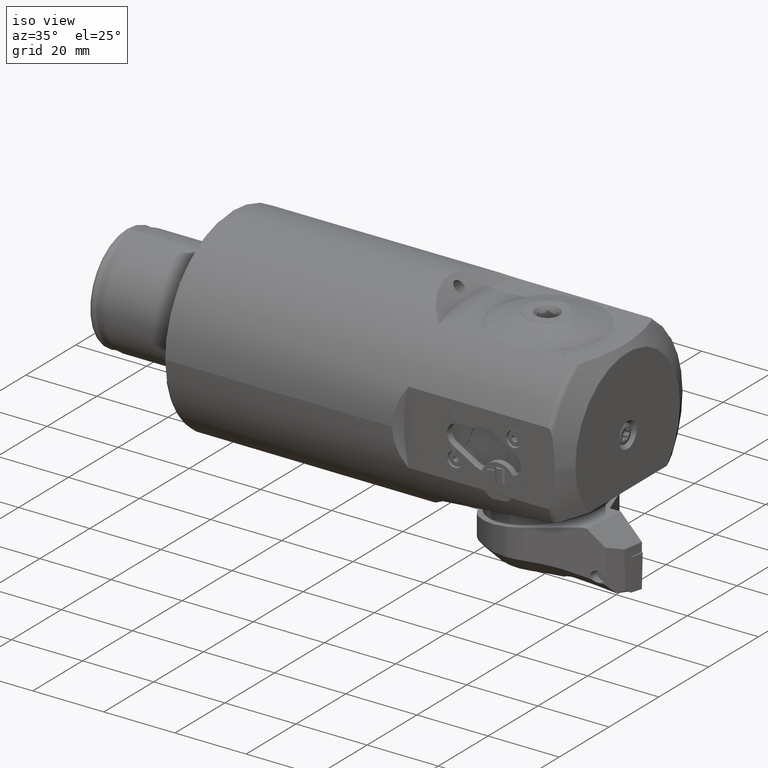
[diagram: clean part render]
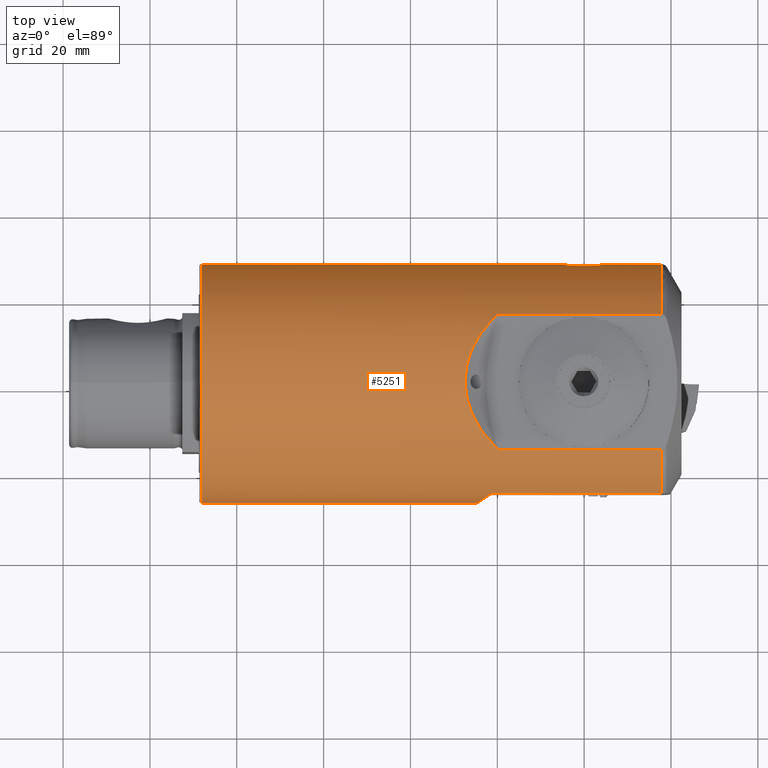
[diagram: tour spotlight — one face highlighted and labeled with its STEP entity id]
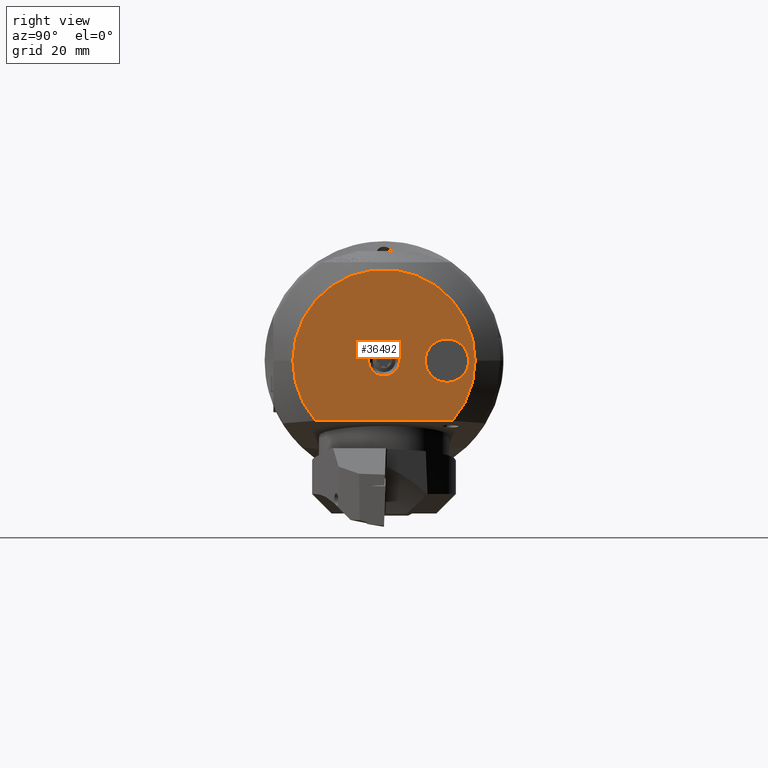
[diagram: tour spotlight — one face highlighted and labeled with its STEP entity id]
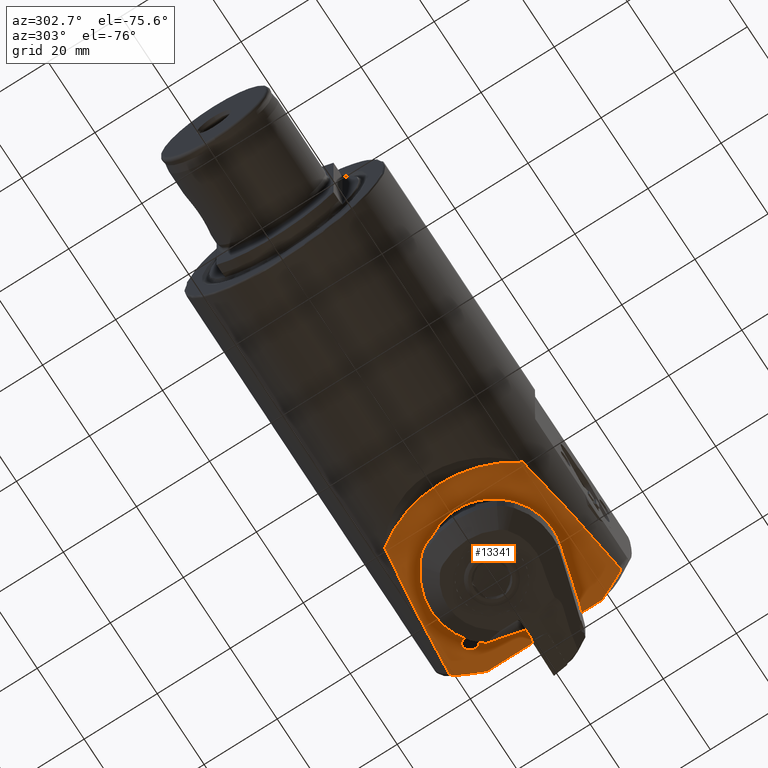
[diagram: tour spotlight — one face highlighted and labeled with its STEP entity id]
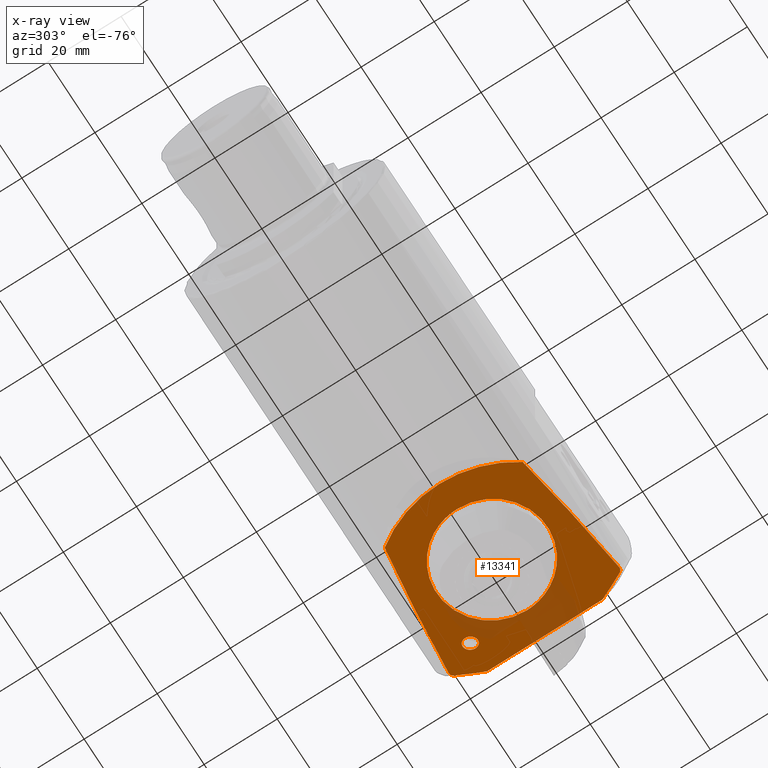
[diagram: x-ray of the same camera — body ghosted, this tour face saturated]
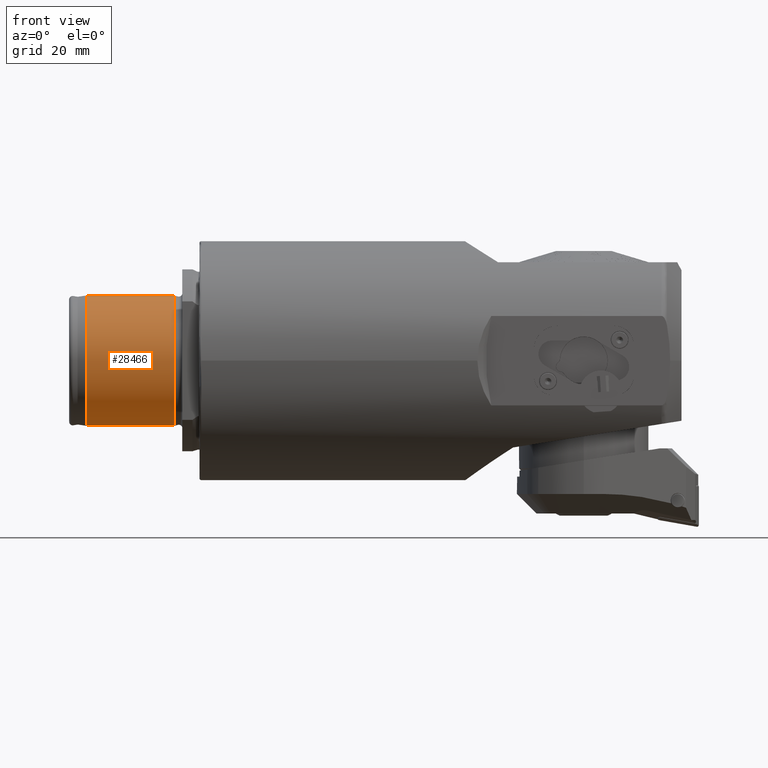
[diagram: tour spotlight — one face highlighted and labeled with its STEP entity id]
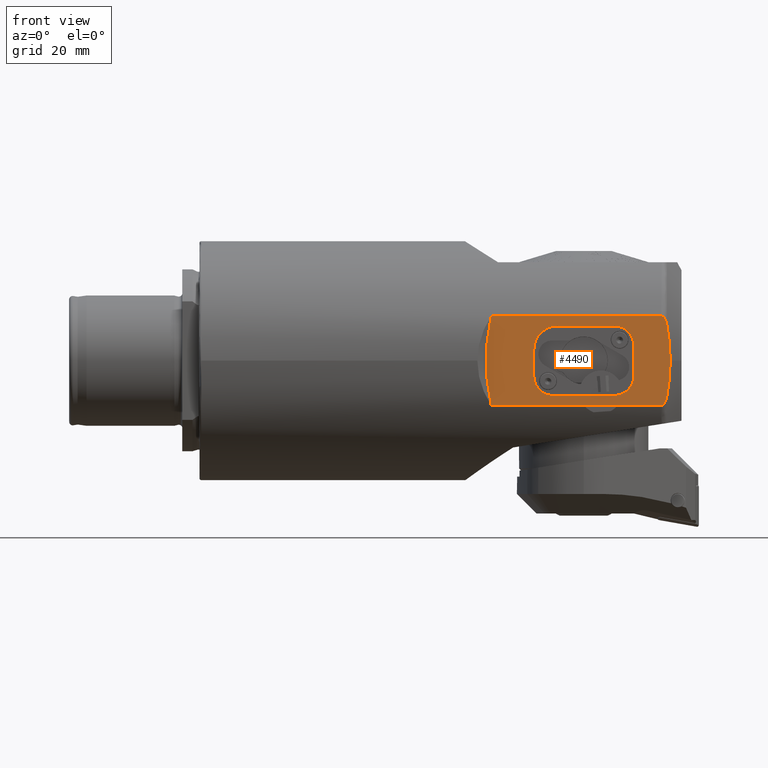
[diagram: tour spotlight — one face highlighted and labeled with its STEP entity id]
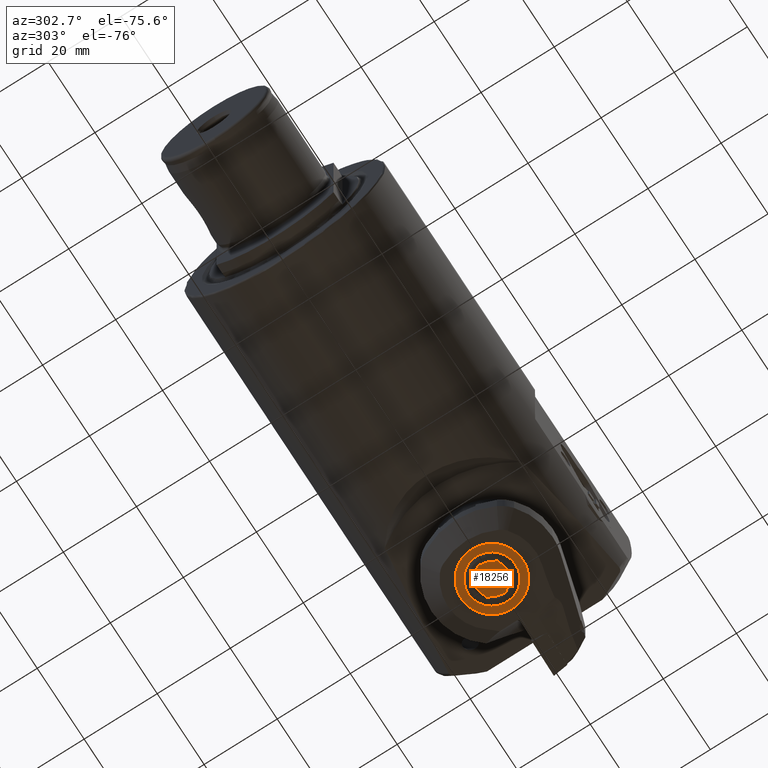
[diagram: tour spotlight — one face highlighted and labeled with its STEP entity id]
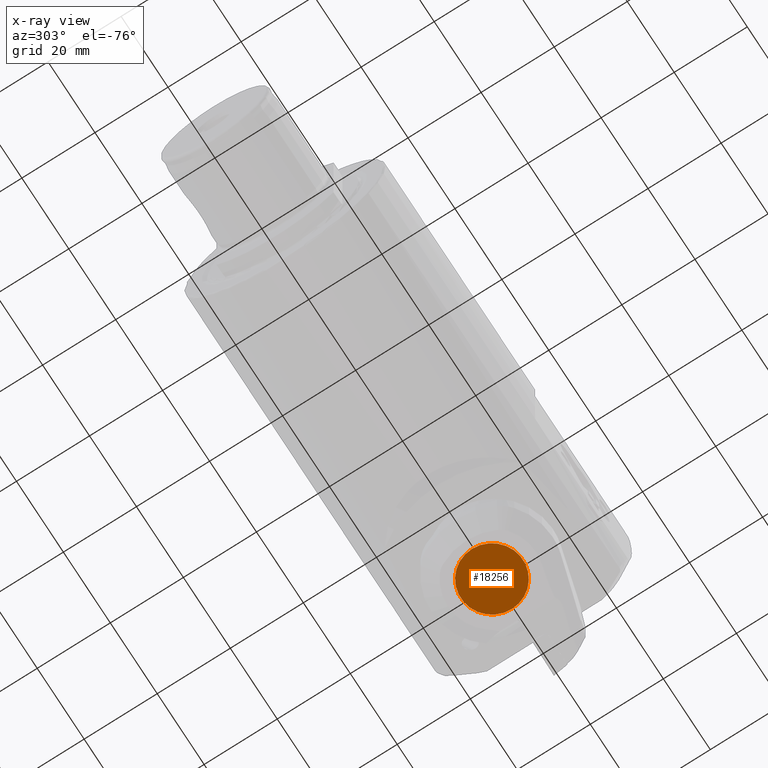
[diagram: x-ray of the same camera — body ghosted, this tour face saturated]
A machine part: a face-by-face anatomy tour. The part has 1218 B-rep faces; the first image is the clean iso view, then the 6 largest visible faces are spotlighted one at a time (largest first), each with its STEP entity span.

Face 1 — top view, entity #5251. In plain terms, the highlighted cylindrical surface (partial cylindrical patch) has radius 27.5 mm, axis along (1, 0, 0).
Definition (entity closure, byte-faithful):
#147 = CARTESIAN_POINT ( 'NONE',  ( 66.26739846501423900, -26.07664832873212300, 8.773223174299536400 ) ) ;
#294 = CARTESIAN_POINT ( 'NONE',  ( 93.61368899108700200, 27.39537136746297800, 2.418847311340104300 ) ) ;
#549 = CARTESIAN_POINT ( 'NONE',  ( 61.85026366078967900, -4.973180803876927000, 27.04923090356981400 ) ) ;
#672 = CARTESIAN_POINT ( 'NONE',  ( 63.76430119481525300, 9.482264867768668300, 25.82282294997750000 ) ) ;
#877 = CARTESIAN_POINT ( 'NONE',  ( 82.75000000000000000, 27.50000000000000700, 8.111862999274906200E-020 ) ) ;
#1012 = ORIENTED_EDGE ( 'NONE', *, *, #24336, .T. ) ;
#1072 = CIRCLE ( 'NONE', #27993, 27.49999999999999600 ) ;
#1086 = CARTESIAN_POINT ( 'NONE',  ( 106.3811978464829900, 1.301042606982605300E-014, 0.0000000000000000000 ) ) ;
#1291 = CARTESIAN_POINT ( 'NONE',  ( 94.25000000000002800, 27.50000000000001800, 0.3594842936955661200 ) ) ;
#1406 = DIRECTION ( 'NONE',  ( 1.000000000000000000, 1.217090944573382400E-016, -0.0000000000000000000 ) ) ;
#1553 = CARTESIAN_POINT ( 'NONE',  ( 94.25000000000001400, 27.50000000000000700, -3.983747571366109600E-024 ) ) ;
#1556 = LINE ( 'NONE', #14898, #16539 ) ;
#1674 = B_SPLINE_CURVE_WITH_KNOTS ( 'NONE', 3,
 ( #24222, #21240, #24370, #6394, #27402, #9430, #30443, #12428, #33451, #15477, #36477, #18473, #549, #21494, #3544, #24494, #6535, #27532, #9557, #30578, #12581, #33573, #15611, #36623, #18608, #672, #21635, #3679, #24624, #6671, #27679, #9686 ),
 .UNSPECIFIED., .F., .F.,
 ( 4, 2, 2, 2, 2, 2, 2, 2, 2, 2, 2, 2, 2, 2, 2, 4 ),
 ( 0.001135853514504610400, 0.005787400372490387300, 0.008113173801483290800, 0.01043894723047619200, 0.01276472065946909600, 0.01392760737396554100, 0.01509049408846198400, 0.01741626751745487300, 0.01974204094644776300, 0.02439358780443353500, 0.02555647451892997500, 0.02671936123342641800, 0.02904513466241931800, 0.03137090809141222100, 0.03369668152040512800, 0.03834822837839096900 ),
 .UNSPECIFIED. ) ;
#1763 = CARTESIAN_POINT ( 'NONE',  ( 68.78895286776220500, 15.59575262691737600, 22.64999999999999900 ) ) ;
#1796 = DIRECTION ( 'NONE',  ( 1.000000000000000000, 1.217090944573382400E-016, -0.0000000000000000000 ) ) ;
#2311 = ORIENTED_EDGE ( 'NONE', *, *, #3658, .F. ) ;
#2392 = CARTESIAN_POINT ( 'NONE',  ( 0.3999999999999975800, 0.0000000000000000000, 0.0000000000000000000 ) ) ;
#2848 = CARTESIAN_POINT ( 'NONE',  ( 83.38626313331498400, 27.39538140868673100, 2.418539511626480700 ) ) ;
#3074 = LINE ( 'NONE', #17161, #34053 ) ;
#3160 = CARTESIAN_POINT ( 'NONE',  ( 67.19360777238098600, -25.50000000000000400, 10.29563014098695600 ) ) ;
#3319 = CARTESIAN_POINT ( 'NONE',  ( 92.98664013262580900, 27.30367401681316200, 3.292619290459261300 ) ) ;
#3544 = CARTESIAN_POINT ( 'NONE',  ( 61.40462219094529700, -3.096405206153555400, 27.33596276493708300 ) ) ;
#3658 = EDGE_CURVE ( 'NONE', #23927, #38097, #20725, .T. ) ;
#3679 = CARTESIAN_POINT ( 'NONE',  ( 64.96568625694536100, 11.34937452485157600, 25.05768474111533100 ) ) ;
#3804 = CARTESIAN_POINT ( 'NONE',  ( 141.6568237482129900, 27.50000000000001400, 0.0000000000000000000 ) ) ;
#4041 = LINE ( 'NONE', #20418, #27008 ) ;
#4052 = DIRECTION ( 'NONE',  ( 0.0000000000000000000, 1.000000000000000000, 0.0000000000000000000 ) ) ;
#4387 = DIRECTION ( 'NONE',  ( 0.0000000000000000000, 1.000000000000000000, 0.0000000000000000000 ) ) ;
#4932 = EDGE_CURVE ( 'NONE', #13201, #33866, #25864, .T. ) ;
#5093 = AXIS2_PLACEMENT_3D ( 'NONE', #5801, #26790, #8810 ) ;
#5235 = ORIENTED_EDGE ( 'NONE', *, *, #34056, .F. ) ;
#5251 = ADVANCED_FACE ( 'NONE', ( #18268 ), #10308, .T. ) ;
#5336 = CIRCLE ( 'NONE', #30230, 27.50000000000000400 ) ;
#5374 = DIRECTION ( 'NONE',  ( 0.0000000000000000000, 0.0000000000000000000, 1.000000000000000000 ) ) ;
#5527 = VERTEX_POINT ( 'NONE', #27478 ) ;
#5706 = CARTESIAN_POINT ( 'NONE',  ( 87.77598152650772100, 27.00132924440389500, 5.213659200865267400 ) ) ;
#5801 = CARTESIAN_POINT ( 'NONE',  ( 0.3999999999999975800, 0.0000000000000000000, 0.0000000000000000000 ) ) ;
#5827 = CARTESIAN_POINT ( 'NONE',  ( 83.08244062775298700, 27.44402702691588700, 1.761977964830687900 ) ) ;
#6280 = CARTESIAN_POINT ( 'NONE',  ( 92.19561253349310400, 27.20450514745682800, 4.027560752127729200 ) ) ;
#6394 = CARTESIAN_POINT ( 'NONE',  ( 65.39772004512198600, -11.93439518639620900, 24.78341961440412100 ) ) ;
#6535 = CARTESIAN_POINT ( 'NONE',  ( 61.14984546640973000, -0.7834610767660068500, 27.50009959275331200 ) ) ;
#6671 = CARTESIAN_POINT ( 'NONE',  ( 66.75656946494150600, 13.62008681370630600, 23.92348110900813300 ) ) ;
#6697 = CARTESIAN_POINT ( 'NONE',  ( 106.3811978464829900, 27.50000000000001100, 0.0000000000000000000 ) ) ;
#8277 = VERTEX_POINT ( 'NONE', #1763 ) ;
#8704 = CARTESIAN_POINT ( 'NONE',  ( 87.06536123901423700, 27.02509249853383400, 5.089046931711140900 ) ) ;
#8781 = CARTESIAN_POINT ( 'NONE',  ( 64.00000000000001400, -27.49999999999999300, 0.9353614239835609200 ) ) ;
#8810 = DIRECTION ( 'NONE',  ( 0.0000000000000000000, 0.0000000000000000000, 1.000000000000000000 ) ) ;
#8844 = CARTESIAN_POINT ( 'NONE',  ( 82.91271416208401500, 27.47221337639535600, 1.248226674287413300 ) ) ;
#8921 = CARTESIAN_POINT ( 'NONE',  ( 64.00000000000001400, -27.49999999999998900, 3.367462765326223200E-015 ) ) ;
#8997 = VERTEX_POINT ( 'NONE', #38699 ) ;
#9048 = CARTESIAN_POINT ( 'NONE',  ( 64.07536710515573500, -27.45243142201051300, 1.856911928357779300 ) ) ;
#9189 = ORIENTED_EDGE ( 'NONE', *, *, #17015, .F. ) ;
#9255 = LINE ( 'NONE', #11070, #24249 ) ;
#9320 = CARTESIAN_POINT ( 'NONE',  ( 91.27843715553197500, 27.11295521919760200, 4.601290271994440900 ) ) ;
#9430 = CARTESIAN_POINT ( 'NONE',  ( 64.14538636165238500, -10.11813506079388200, 25.57967078929330300 ) ) ;
#9557 = CARTESIAN_POINT ( 'NONE',  ( 61.35826176387181600, 3.109905807338542600, 27.36565371986467100 ) ) ;
#9686 = CARTESIAN_POINT ( 'NONE',  ( 68.78895286776220500, 15.59575262691737600, 22.64999999999999900 ) ) ;
#9798 = ORIENTED_EDGE ( 'NONE', *, *, #21078, .F. ) ;
#10018 = VERTEX_POINT ( 'NONE', #33897 ) ;
#10308 = CYLINDRICAL_SURFACE ( 'NONE', #35282, 27.49999999999999600 ) ;
#11070 = CARTESIAN_POINT ( 'NONE',  ( 141.6568237482129900, -25.49999999999999300, 10.29563014098697200 ) ) ;
#11249 = CARTESIAN_POINT ( 'NONE',  ( 106.3811978464829900, -15.59575262691735600, 22.64999999999999500 ) ) ;
#11355 = DIRECTION ( 'NONE',  ( 1.000000000000000000, 1.217090944573382400E-016, -0.0000000000000000000 ) ) ;
#11727 = CARTESIAN_POINT ( 'NONE',  ( 86.04439511524471100, 27.08666143917901800, 4.751660128255324800 ) ) ;
#11843 = VECTOR ( 'NONE', #21738, 1000.000000000000000 ) ;
#11855 = CARTESIAN_POINT ( 'NONE',  ( 82.75000000000000000, 27.50000000000001400, 0.3638165595453400900 ) ) ;
#12047 = CARTESIAN_POINT ( 'NONE',  ( 64.38446496097245100, -27.25763905276954400, 3.671017571718176800 ) ) ;
#12328 = CARTESIAN_POINT ( 'NONE',  ( 90.27928174427147200, 27.04243831230046900, 4.997194015613202600 ) ) ;
#12389 = CARTESIAN_POINT ( 'NONE',  ( 0.3999999999999975800, -27.50000000000000400, 3.367778697655222500E-015 ) ) ;
#12428 = CARTESIAN_POINT ( 'NONE',  ( 63.06642736252329900, -8.165534533415908000, 26.26891766356213500 ) ) ;
#12581 = CARTESIAN_POINT ( 'NONE',  ( 61.96267400092606400, 5.350832135930690300, 26.97696956334926100 ) ) ;
#13201 = VERTEX_POINT ( 'NONE', #18547 ) ;
#13728 = B_SPLINE_CURVE_WITH_KNOTS ( 'NONE', 3,
 ( #1553, #1291, #15223, #36244, #18235, #294, #21251, #3319, #24239, #6280, #27299, #9320, #30313, #12328, #33340, #15354, #36360, #18376 ),
 .UNSPECIFIED., .F., .F.,
 ( 4, 2, 2, 2, 2, 2, 2, 2, 4 ),
 ( 0.01286604629944311900, 0.01394534774985364100, 0.01502464920026416400, 0.01610395065067468700, 0.01718325210108520900, 0.01826255355149573200, 0.01934185500190625100, 0.02042115645231677700, 0.02150045790272729600 ),
 .UNSPECIFIED. ) ;
#14761 = CARTESIAN_POINT ( 'NONE',  ( 85.09332632410456700, 27.17269768992758500, 4.234175230876091200 ) ) ;
#14898 = CARTESIAN_POINT ( 'NONE',  ( 141.6568237482129900, -27.49999999999997900, 3.367778697655220900E-015 ) ) ;
#15102 = CARTESIAN_POINT ( 'NONE',  ( 64.72576889890577000, -27.04283440483277400, 5.013296038461904300 ) ) ;
#15223 = CARTESIAN_POINT ( 'NONE',  ( 94.20806954720824000, 27.49268124569142200, 0.7246619657989456000 ) ) ;
#15354 = CARTESIAN_POINT ( 'NONE',  ( 89.21625930896217900, 27.00115032311224900, 5.214581495486026300 ) ) ;
#15477 = CARTESIAN_POINT ( 'NONE',  ( 62.33196142542185200, -6.431567823062465500, 26.73979449180326300 ) ) ;
#15611 = CARTESIAN_POINT ( 'NONE',  ( 62.33348868162768500, 6.435618498561657600, 26.73881431490566400 ) ) ;
#16159 = ORIENTED_EDGE ( 'NONE', *, *, #23574, .T. ) ;
#16360 = EDGE_CURVE ( 'NONE', #8277, #10018, #21909, .T. ) ;
#16528 = CARTESIAN_POINT ( 'NONE',  ( 0.3999999999999975800, 27.50000000000000700, 0.0000000000000000000 ) ) ;
#16539 = VECTOR ( 'NONE', #20906, 1000.000000000000000 ) ;
#16604 = ORIENTED_EDGE ( 'NONE', *, *, #16360, .T. ) ;
#17015 = EDGE_CURVE ( 'NONE', #8997, #32636, #4041, .T. ) ;
#17161 = CARTESIAN_POINT ( 'NONE',  ( 141.6568237482129900, -15.59575262691735100, 22.64999999999999500 ) ) ;
#17775 = CARTESIAN_POINT ( 'NONE',  ( 84.26245732680021700, 27.27019197263238900, 3.555714182692124600 ) ) ;
#18082 = CARTESIAN_POINT ( 'NONE',  ( 65.48634895091441900, -26.56517763051289500, 7.159076084644706100 ) ) ;
#18216 = VERTEX_POINT ( 'NONE', #37965 ) ;
#18235 = CARTESIAN_POINT ( 'NONE',  ( 93.92652125879050100, 27.44519399573103900, 1.765933524648143100 ) ) ;
#18268 = FACE_OUTER_BOUND ( 'NONE', #25119, .T. ) ;
#18376 = CARTESIAN_POINT ( 'NONE',  ( 88.50000000000001400, 26.99515431067581900, 5.245154310675818700 ) ) ;
#18473 = CARTESIAN_POINT ( 'NONE',  ( 61.96091508186603400, -5.345169280119670900, 26.97809993059598500 ) ) ;
#18547 = CARTESIAN_POINT ( 'NONE',  ( 88.50000000000001400, 26.99515431067581900, 5.245154310675818700 ) ) ;
#18608 = CARTESIAN_POINT ( 'NONE',  ( 63.06755050418834700, 8.167818661981440800, 26.26819884258136300 ) ) ;
#19204 = AXIS2_PLACEMENT_3D ( 'NONE', #1086, #22026, #4052 ) ;
#19732 = CARTESIAN_POINT ( 'NONE',  ( 106.3811978464829900, 1.301042606982605300E-014, 0.0000000000000000000 ) ) ;
#20418 = CARTESIAN_POINT ( 'NONE',  ( 141.6568237482129900, 27.50000000000001400, 0.0000000000000000000 ) ) ;
#20725 = CIRCLE ( 'NONE', #5093, 27.50000000000000400 ) ;
#20791 = CARTESIAN_POINT ( 'NONE',  ( 83.57441322858073800, 27.36642906320268800, 2.722146513799447400 ) ) ;
#20906 = DIRECTION ( 'NONE',  ( 1.000000000000000000, 1.217090944573382400E-016, -0.0000000000000000000 ) ) ;
#21078 = EDGE_CURVE ( 'NONE', #27462, #23927, #5336, .T. ) ;
#21116 = CARTESIAN_POINT ( 'NONE',  ( 66.71077512073129900, -25.80001640451726500, 9.552555825920650900 ) ) ;
#21240 = CARTESIAN_POINT ( 'NONE',  ( 67.74076989245372700, -14.64589766696640400, 23.30402662193579400 ) ) ;
#21251 = CARTESIAN_POINT ( 'NONE',  ( 93.42477697076182600, 27.36630298723363100, 2.723493605505729500 ) ) ;
#21494 = CARTESIAN_POINT ( 'NONE',  ( 61.55478233549904800, -3.853062562300686000, 27.23926555584311900 ) ) ;
#21635 = CARTESIAN_POINT ( 'NONE',  ( 64.14646551991484100, 10.11985638928781000, 25.57898303980565300 ) ) ;
#21738 = DIRECTION ( 'NONE',  ( 1.000000000000000000, 1.217090944573382400E-016, -0.0000000000000000000 ) ) ;
#21909 = LINE ( 'NONE', #29700, #35999 ) ;
#22026 = DIRECTION ( 'NONE',  ( 1.000000000000000000, 1.217090944573382400E-016, -0.0000000000000000000 ) ) ;
#22155 = ORIENTED_EDGE ( 'NONE', *, *, #33199, .F. ) ;
#22225 = EDGE_CURVE ( 'NONE', #32636, #10018, #25915, .T. ) ;
#22729 = DIRECTION ( 'NONE',  ( 0.0000000000000000000, 1.000000000000000000, 0.0000000000000000000 ) ) ;
#23323 = DIRECTION ( 'NONE',  ( -1.000000000000000000, -0.0000000000000000000, -0.0000000000000000000 ) ) ;
#23574 = EDGE_CURVE ( 'NONE', #18216, #8277, #1674, .T. ) ;
#23657 = ORIENTED_EDGE ( 'NONE', *, *, #38682, .T. ) ;
#23660 = CARTESIAN_POINT ( 'NONE',  ( 88.14054238442832900, 26.99515431067582900, 5.245154310675820500 ) ) ;
#23777 = CARTESIAN_POINT ( 'NONE',  ( 83.15252016586170200, 27.43260441361210800, 1.931004676444233900 ) ) ;
#23823 = VERTEX_POINT ( 'NONE', #37694 ) ;
#23927 = VERTEX_POINT ( 'NONE', #29254 ) ;
#23930 = VERTEX_POINT ( 'NONE', #11249 ) ;
#24222 = CARTESIAN_POINT ( 'NONE',  ( 68.78895286776220500, -15.59575262691736000, 22.64999999999999900 ) ) ;
#24239 = CARTESIAN_POINT ( 'NONE',  ( 92.73586619000883500, 27.26997616807640100, 3.557350941730280400 ) ) ;
#24249 = VECTOR ( 'NONE', #32074, 1000.000000000000000 ) ;
#24336 = EDGE_CURVE ( 'NONE', #8997, #13201, #13728, .T. ) ;
#24370 = CARTESIAN_POINT ( 'NONE',  ( 66.75613524206454500, -13.61964344658702000, 23.92375424933702300 ) ) ;
#24494 = CARTESIAN_POINT ( 'NONE',  ( 61.20216427975432800, -1.562346843426266800, 27.46637321940335500 ) ) ;
#24624 = CARTESIAN_POINT ( 'NONE',  ( 65.39848558363743800, 11.93539252547300400, 24.78293432100755600 ) ) ;
#25119 = EDGE_LOOP ( 'NONE', ( #9798, #37526, #31918, #23657, #5235, #32618, #16159, #16604, #25661, #9189, #1012, #31728, #22155, #2311 ) ) ;
#25220 = CARTESIAN_POINT ( 'NONE',  ( 141.6568237482129900, 1.734723475976807100E-014, 0.0000000000000000000 ) ) ;
#25661 = ORIENTED_EDGE ( 'NONE', *, *, #22225, .F. ) ;
#25864 = B_SPLINE_CURVE_WITH_KNOTS ( 'NONE', 3,
 ( #26700, #23660, #5706, #8704, #29731, #11727, #32726, #14761, #35767, #17775, #38808, #20791, #2848, #23777, #5827, #26825, #8844, #29845, #11855, #32860 ),
 .UNSPECIFIED., .F., .F.,
 ( 4, 2, 2, 2, 2, 2, 2, 2, 2, 4 ),
 ( 0.02150045790272729600, 0.02258147575346929800, 0.02366249360421130200, 0.02474351145495330700, 0.02582452930569530800, 0.02690554715643730900, 0.02798656500717931400, 0.02852707393255031500, 0.02906758285792131500, 0.03014860070866331000 ),
 .UNSPECIFIED. ) ;
#25915 = CIRCLE ( 'NONE', #19204, 27.49999999999999600 ) ;
#26700 = CARTESIAN_POINT ( 'NONE',  ( 88.50000000000001400, 26.99515431067581900, 5.245154310675818700 ) ) ;
#26790 = DIRECTION ( 'NONE',  ( -1.000000000000000000, -0.0000000000000000000, -0.0000000000000000000 ) ) ;
#26825 = CARTESIAN_POINT ( 'NONE',  ( 82.96274438739433800, 27.46379988734642900, 1.420873516689214100 ) ) ;
#26869 = LINE ( 'NONE', #3804, #11843 ) ;
#27008 = VECTOR ( 'NONE', #11355, 1000.000000000000000 ) ;
#27299 = CARTESIAN_POINT ( 'NONE',  ( 91.90405770456291600, 27.17239665146073300, 4.236162544219803600 ) ) ;
#27402 = CARTESIAN_POINT ( 'NONE',  ( 64.96481161379583100, -11.34816327054393300, 25.05824026507387400 ) ) ;
#27462 = VERTEX_POINT ( 'NONE', #12389 ) ;
#27478 = CARTESIAN_POINT ( 'NONE',  ( 67.19360777238098600, -25.50000000000000400, 10.29563014098695600 ) ) ;
#27532 = CARTESIAN_POINT ( 'NONE',  ( 61.15031009687511700, 1.577386174064823600, 27.49980015088292600 ) ) ;
#27679 = CARTESIAN_POINT ( 'NONE',  ( 67.74097873327986000, 14.64608691683898900, 23.30389631314120500 ) ) ;
#27993 = AXIS2_PLACEMENT_3D ( 'NONE', #19732, #1796, #22729 ) ;
#28407 = EDGE_CURVE ( 'NONE', #23823, #5527, #35350, .T. ) ;
#28840 = EDGE_CURVE ( 'NONE', #23930, #18216, #3074, .T. ) ;
#29254 = CARTESIAN_POINT ( 'NONE',  ( 0.3999999999999975800, 0.0000000000000000000, 27.50000000000000400 ) ) ;
#29700 = CARTESIAN_POINT ( 'NONE',  ( 141.6568237482129900, 15.59575262691738300, 22.64999999999999500 ) ) ;
#29731 = CARTESIAN_POINT ( 'NONE',  ( 86.71903903512779300, 27.04252547308171000, 4.996730724472320700 ) ) ;
#29845 = CARTESIAN_POINT ( 'NONE',  ( 82.79187331066933100, 27.49269152222885300, 0.7240327188444617400 ) ) ;
#30059 = CARTESIAN_POINT ( 'NONE',  ( 64.29395941883684900, -27.31466063209659000, 3.219913473349779000 ) ) ;
#30230 = AXIS2_PLACEMENT_3D ( 'NONE', #2392, #23323, #5374 ) ;
#30313 = CARTESIAN_POINT ( 'NONE',  ( 90.95289704261468000, 27.08646174069834000, 4.752789525525154900 ) ) ;
#30443 = CARTESIAN_POINT ( 'NONE',  ( 63.76335159101474700, -9.480638193803487800, 25.82342906876638400 ) ) ;
#30578 = CARTESIAN_POINT ( 'NONE',  ( 61.85193671776117000, 4.979064314715494700, 27.04815522180403400 ) ) ;
#31728 = ORIENTED_EDGE ( 'NONE', *, *, #4932, .T. ) ;
#31918 = ORIENTED_EDGE ( 'NONE', *, *, #28407, .T. ) ;
#32074 = DIRECTION ( 'NONE',  ( 1.000000000000000000, 1.217090944573382400E-016, -0.0000000000000000000 ) ) ;
#32618 = ORIENTED_EDGE ( 'NONE', *, *, #28840, .T. ) ;
#32636 = VERTEX_POINT ( 'NONE', #6697 ) ;
#32689 = DIRECTION ( 'NONE',  ( 1.000000000000000000, 1.217090944573382400E-016, -0.0000000000000000000 ) ) ;
#32726 = CARTESIAN_POINT ( 'NONE',  ( 85.71305268871705600, 27.11371222982860700, 4.596775908395265700 ) ) ;
#32860 = CARTESIAN_POINT ( 'NONE',  ( 82.75000000000000000, 27.50000000000000700, 8.111862999274906200E-020 ) ) ;
#33045 = CARTESIAN_POINT ( 'NONE',  ( 64.60005695160852200, -27.12192227453918000, 4.566901452493452100 ) ) ;
#33199 = EDGE_CURVE ( 'NONE', #38097, #33866, #26869, .T. ) ;
#33291 = VERTEX_POINT ( 'NONE', #34083 ) ;
#33340 = CARTESIAN_POINT ( 'NONE',  ( 89.92790047182991500, 27.02478824701741500, 5.090658027037311400 ) ) ;
#33451 = CARTESIAN_POINT ( 'NONE',  ( 62.75055282896296700, -7.486539240173802200, 26.47127550216338700 ) ) ;
#33573 = CARTESIAN_POINT ( 'NONE',  ( 62.20326879990963000, 6.078347479045334000, 26.82241568712192900 ) ) ;
#33626 = EDGE_CURVE ( 'NONE', #27462, #23823, #1556, .T. ) ;
#33866 = VERTEX_POINT ( 'NONE', #877 ) ;
#33897 = CARTESIAN_POINT ( 'NONE',  ( 106.3811978464829900, 15.59575262691737900, 22.64999999999999500 ) ) ;
#34053 = VECTOR ( 'NONE', #35142, 1000.000000000000000 ) ;
#34056 = EDGE_CURVE ( 'NONE', #23930, #33291, #1072, .T. ) ;
#34083 = CARTESIAN_POINT ( 'NONE',  ( 106.3811978464829900, -25.49999999999999300, 10.29563014098698700 ) ) ;
#35142 = DIRECTION ( 'NONE',  ( -1.000000000000000000, -1.217090944573382400E-016, 0.0000000000000000000 ) ) ;
#35282 = AXIS2_PLACEMENT_3D ( 'NONE', #25220, #1406, #4387 ) ;
#35350 = B_SPLINE_CURVE_WITH_KNOTS ( 'NONE', 3,
 ( #8921, #8781, #9048, #30059, #12047, #33045, #15102, #36092, #18082, #147, #21116, #3160 ),
 .UNSPECIFIED., .F., .F.,
 ( 4, 2, 2, 2, 2, 4 ),
 ( 0.01175046814892350200, 0.01452989750562951200, 0.01591961218398251300, 0.01730932686233551500, 0.02008875621904150300, 0.02286818557574749400 ),
 .UNSPECIFIED. ) ;
#35767 = CARTESIAN_POINT ( 'NONE',  ( 84.80291935198258100, 27.20467049651791000, 4.026459579967234200 ) ) ;
#35999 = VECTOR ( 'NONE', #32689, 1000.000000000000000 ) ;
#36092 = CARTESIAN_POINT ( 'NONE',  ( 65.14672757072355600, -26.77828386890837100, 6.321837731389676300 ) ) ;
#36244 = CARTESIAN_POINT ( 'NONE',  ( 94.04654447358039700, 27.46530978626452000, 1.424575510947411000 ) ) ;
#36360 = CARTESIAN_POINT ( 'NONE',  ( 88.85888688200789400, 26.99515431067582200, 5.245154310675819600 ) ) ;
#36477 = CARTESIAN_POINT ( 'NONE',  ( 62.20165781632595500, -6.073815573649147500, 26.82345009270164100 ) ) ;
#36623 = CARTESIAN_POINT ( 'NONE',  ( 62.75183324111470300, 7.489360003125209000, 26.47045508576917100 ) ) ;
#37526 = ORIENTED_EDGE ( 'NONE', *, *, #33626, .T. ) ;
#37694 = CARTESIAN_POINT ( 'NONE',  ( 64.00000000000001400, -27.49999999999998900, 3.367462765326223200E-015 ) ) ;
#37965 = CARTESIAN_POINT ( 'NONE',  ( 68.78895286776220500, -15.59575262691736000, 22.64999999999999900 ) ) ;
#38097 = VERTEX_POINT ( 'NONE', #16528 ) ;
#38682 = EDGE_CURVE ( 'NONE', #5527, #33291, #9255, .T. ) ;
#38699 = CARTESIAN_POINT ( 'NONE',  ( 94.25000000000001400, 27.50000000000000700, -3.983747571366109600E-024 ) ) ;
#38808 = CARTESIAN_POINT ( 'NONE',  ( 84.01093586203130300, 27.30401026972270300, 3.289763594055332300 ) ) ;

Face 2 — right view, entity #36492. In plain terms, the highlighted planar face has unit normal (1, 0, 0).
Definition (entity closure, byte-faithful):
#1118 = CIRCLE ( 'NONE', #9216, 3.543375672974042400 ) ;
#1168 = EDGE_CURVE ( 'NONE', #21357, #5250, #9181, .T. ) ;
#1968 = ORIENTED_EDGE ( 'NONE', *, *, #1168, .T. ) ;
#2730 = EDGE_CURVE ( 'NONE', #29894, #13827, #16554, .T. ) ;
#2873 = AXIS2_PLACEMENT_3D ( 'NONE', #26294, #8295, #29321 ) ;
#3114 = ORIENTED_EDGE ( 'NONE', *, *, #10909, .T. ) ;
#3309 = VERTEX_POINT ( 'NONE', #33677 ) ;
#4401 = CARTESIAN_POINT ( 'NONE',  ( 111.0000000000000000, 0.0000000000000000000, 3.587491379859671100E-015 ) ) ;
#5250 = VERTEX_POINT ( 'NONE', #10289 ) ;
#5580 = FACE_OUTER_BOUND ( 'NONE', #8931, .T. ) ;
#5702 = EDGE_CURVE ( 'NONE', #3309, #28732, #30938, .T. ) ;
#5884 = EDGE_CURVE ( 'NONE', #36310, #11553, #10270, .T. ) ;
#6541 = DIRECTION ( 'NONE',  ( 1.000000000000000000, -0.0000000000000000000, -0.0000000000000000000 ) ) ;
#7060 = ORIENTED_EDGE ( 'NONE', *, *, #5702, .T. ) ;
#7401 = DIRECTION ( 'NONE',  ( 0.0000000000000000000, 0.0000000000000000000, 1.000000000000000000 ) ) ;
#7628 = DIRECTION ( 'NONE',  ( 1.000000000000000000, 1.217090944573382400E-016, -0.0000000000000000000 ) ) ;
#7691 = DIRECTION ( 'NONE',  ( -1.000000000000000000, -0.0000000000000000000, -0.0000000000000000000 ) ) ;
#7949 = CIRCLE ( 'NONE', #16907, 4.999999999999995600 ) ;
#8019 = PLANE ( 'NONE',  #35880 ) ;
#8295 = DIRECTION ( 'NONE',  ( 1.000000000000000000, 1.217090944573382400E-016, -0.0000000000000000000 ) ) ;
#8737 = EDGE_LOOP ( 'NONE', ( #17586, #7060 ) ) ;
#8931 = EDGE_LOOP ( 'NONE', ( #19851, #27545, #3114, #1968 ) ) ;
#9181 = LINE ( 'NONE', #30159, #16250 ) ;
#9216 = AXIS2_PLACEMENT_3D ( 'NONE', #25663, #7691, #28723 ) ;
#9509 = CARTESIAN_POINT ( 'NONE',  ( 111.0000000000000000, 1.366094737331735600E-014, 0.0000000000000000000 ) ) ;
#9593 = CARTESIAN_POINT ( 'NONE',  ( 111.0000000000000000, 21.00000000000000700, 2.923844232964305600E-015 ) ) ;
#10270 = CIRCLE ( 'NONE', #2873, 20.99999999999999300 ) ;
#10289 = CARTESIAN_POINT ( 'NONE',  ( 111.0000000000000000, 15.78908315458884500, -13.84575216943734700 ) ) ;
#10909 = EDGE_CURVE ( 'NONE', #11553, #21357, #14276, .T. ) ;
#10995 = CARTESIAN_POINT ( 'NONE',  ( 111.0000000000000000, 14.50000000000001200, 0.0000000000000000000 ) ) ;
#11125 = EDGE_LOOP ( 'NONE', ( #34525, #33999 ) ) ;
#11331 = AXIS2_PLACEMENT_3D ( 'NONE', #24498, #6541, #27539 ) ;
#11553 = VERTEX_POINT ( 'NONE', #32512 ) ;
#11616 = AXIS2_PLACEMENT_3D ( 'NONE', #4401, #25386, #7401 ) ;
#12518 = DIRECTION ( 'NONE',  ( 0.0000000000000000000, 1.000000000000000000, 0.0000000000000000000 ) ) ;
#13442 = EDGE_CURVE ( 'NONE', #13827, #29894, #7949, .T. ) ;
#13581 = FACE_BOUND ( 'NONE', #8737, .T. ) ;
#13827 = VERTEX_POINT ( 'NONE', #19786 ) ;
#14061 = DIRECTION ( 'NONE',  ( 0.0000000000000000000, 0.0000000000000000000, -1.000000000000000000 ) ) ;
#14276 = CIRCLE ( 'NONE', #25604, 20.99999999999999300 ) ;
#15664 = CIRCLE ( 'NONE', #32348, 20.99999999999999300 ) ;
#16250 = VECTOR ( 'NONE', #32133, 1000.000000000000000 ) ;
#16554 = CIRCLE ( 'NONE', #11331, 4.999999999999995600 ) ;
#16907 = AXIS2_PLACEMENT_3D ( 'NONE', #10995, #32018, #14061 ) ;
#17077 = DIRECTION ( 'NONE',  ( 1.000000000000000000, 1.217090944573382400E-016, -0.0000000000000000000 ) ) ;
#17586 = ORIENTED_EDGE ( 'NONE', *, *, #19893, .T. ) ;
#18880 = EDGE_CURVE ( 'NONE', #5250, #36310, #15664, .T. ) ;
#19633 = CARTESIAN_POINT ( 'NONE',  ( 111.0000000000000000, 14.50000000000001200, -4.999999999999995600 ) ) ;
#19786 = CARTESIAN_POINT ( 'NONE',  ( 111.0000000000000000, 14.50000000000001200, 4.999999999999995600 ) ) ;
#19851 = ORIENTED_EDGE ( 'NONE', *, *, #18880, .T. ) ;
#19893 = EDGE_CURVE ( 'NONE', #28732, #3309, #1118, .T. ) ;
#21357 = VERTEX_POINT ( 'NONE', #34093 ) ;
#24498 = CARTESIAN_POINT ( 'NONE',  ( 111.0000000000000000, 14.50000000000001200, 0.0000000000000000000 ) ) ;
#25386 = DIRECTION ( 'NONE',  ( -1.000000000000000000, -0.0000000000000000000, -0.0000000000000000000 ) ) ;
#25594 = CARTESIAN_POINT ( 'NONE',  ( 111.0000000000000000, 1.366094737331735600E-014, 0.0000000000000000000 ) ) ;
#25604 = AXIS2_PLACEMENT_3D ( 'NONE', #25594, #7628, #28650 ) ;
#25663 = CARTESIAN_POINT ( 'NONE',  ( 111.0000000000000000, 0.0000000000000000000, 3.587491379859671100E-015 ) ) ;
#26294 = CARTESIAN_POINT ( 'NONE',  ( 111.0000000000000000, 1.366094737331735600E-014, 0.0000000000000000000 ) ) ;
#27539 = DIRECTION ( 'NONE',  ( 0.0000000000000000000, 0.0000000000000000000, -1.000000000000000000 ) ) ;
#27545 = ORIENTED_EDGE ( 'NONE', *, *, #5884, .T. ) ;
#28650 = DIRECTION ( 'NONE',  ( 0.0000000000000000000, 1.000000000000000000, 0.0000000000000000000 ) ) ;
#28723 = DIRECTION ( 'NONE',  ( 0.0000000000000000000, 0.0000000000000000000, 1.000000000000000000 ) ) ;
#28732 = VERTEX_POINT ( 'NONE', #31721 ) ;
#29321 = DIRECTION ( 'NONE',  ( 0.0000000000000000000, 1.000000000000000000, 0.0000000000000000000 ) ) ;
#29540 = FACE_BOUND ( 'NONE', #11125, .T. ) ;
#29894 = VERTEX_POINT ( 'NONE', #19633 ) ;
#30159 = CARTESIAN_POINT ( 'NONE',  ( 111.0000000000000000, 3.252606517456513300E-015, -13.84575216943734700 ) ) ;
#30523 = DIRECTION ( 'NONE',  ( 1.000000000000000000, 1.217090944573382400E-016, -0.0000000000000000000 ) ) ;
#30938 = CIRCLE ( 'NONE', #11616, 3.543375672974042400 ) ;
#31721 = CARTESIAN_POINT ( 'NONE',  ( 111.0000000000000000, 0.0000000000000000000, -3.543375672974038900 ) ) ;
#32018 = DIRECTION ( 'NONE',  ( 1.000000000000000000, -0.0000000000000000000, -0.0000000000000000000 ) ) ;
#32133 = DIRECTION ( 'NONE',  ( -1.217090944573382400E-016, 1.000000000000000000, -1.927682680803076000E-017 ) ) ;
#32348 = AXIS2_PLACEMENT_3D ( 'NONE', #9509, #30523, #12518 ) ;
#32512 = CARTESIAN_POINT ( 'NONE',  ( 111.0000000000000000, -20.99999999999998200, 0.0000000000000000000 ) ) ;
#33677 = CARTESIAN_POINT ( 'NONE',  ( 111.0000000000000000, 4.339383676084259800E-016, 3.543375672974046000 ) ) ;
#33999 = ORIENTED_EDGE ( 'NONE', *, *, #13442, .F. ) ;
#34093 = CARTESIAN_POINT ( 'NONE',  ( 111.0000000000000000, -15.78908315458881600, -13.84575216943734700 ) ) ;
#34525 = ORIENTED_EDGE ( 'NONE', *, *, #2730, .F. ) ;
#35038 = CARTESIAN_POINT ( 'NONE',  ( 111.0000000000000000, 3.469446951953614200E-015, 0.0000000000000000000 ) ) ;
#35880 = AXIS2_PLACEMENT_3D ( 'NONE', #35038, #17077, #38116 ) ;
#36310 = VERTEX_POINT ( 'NONE', #9593 ) ;
#36492 = ADVANCED_FACE ( 'NONE', ( #13581, #29540, #5580 ), #8019, .T. ) ;
#38116 = DIRECTION ( 'NONE',  ( -1.217090944573382400E-016, 1.000000000000000000, 0.0000000000000000000 ) ) ;

Face 3 — auxiliary view, entity #13341. An x-ray twin of the same camera follows (body ghosted, this face saturated) — the face is partly hidden behind the body. In plain terms, the highlighted planar face has unit normal (0.1564, 0, -0.9877).
Definition (entity closure, byte-faithful):
#190 = EDGE_CURVE ( 'NONE', #32673, #711, #17086, .T. ) ;
#235 = CARTESIAN_POINT ( 'NONE',  ( 111.0000000000000000, 15.78908315458884500, -13.84575216943734700 ) ) ;
#358 = CARTESIAN_POINT ( 'NONE',  ( 106.9077538867679800, 23.26551056005522600, -14.49390027975183800 ) ) ;
#711 = VERTEX_POINT ( 'NONE', #21812 ) ;
#1052 = ORIENTED_EDGE ( 'NONE', *, *, #11489, .T. ) ;
#1132 = CARTESIAN_POINT ( 'NONE',  ( 107.2598697186528500, -23.07871218994477400, -14.43813061078934400 ) ) ;
#1168 = EDGE_CURVE ( 'NONE', #21357, #5250, #9181, .T. ) ;
#1741 = DIRECTION ( 'NONE',  ( -0.9876883405951387700, 0.0000000000000000000, -0.1564344650402238700 ) ) ;
#1881 = VERTEX_POINT ( 'NONE', #36015 ) ;
#1919 = EDGE_LOOP ( 'NONE', ( #26464, #11840 ) ) ;
#2088 = CARTESIAN_POINT ( 'NONE',  ( 108.8261776951650300, -20.32379849066594000, -14.19005179855361300 ) ) ;
#2124 = CARTESIAN_POINT ( 'NONE',  ( 106.3811978464829900, -23.31849837770041800, -14.57729856349186900 ) ) ;
#2241 = CARTESIAN_POINT ( 'NONE',  ( 107.6802359521596500, -22.56149413992010400, -14.37155114016403700 ) ) ;
#2383 = CARTESIAN_POINT ( 'NONE',  ( 102.5743669578369000, 17.12042315937097600, -15.18024134320020500 ) ) ;
#2654 = CARTESIAN_POINT ( 'NONE',  ( 97.11218272874685900, 0.0000000000000000000, -16.04536633527411000 ) ) ;
#2887 = CARTESIAN_POINT ( 'NONE',  ( 103.4256330421630600, 13.35154536490218500, -15.04541404086695500 ) ) ;
#3053 = VERTEX_POINT ( 'NONE', #35149 ) ;
#3383 = CARTESIAN_POINT ( 'NONE',  ( 106.5147529156492300, 23.33172196722117100, -14.55614551860947300 ) ) ;
#3645 = CARTESIAN_POINT ( 'NONE',  ( 105.9266704582335400, 17.43945173560409100, -14.64928862949192900 ) ) ;
#4110 = CARTESIAN_POINT ( 'NONE',  ( 107.5429284345812000, -22.79339234740035300, -14.39329851448804800 ) ) ;
#4829 = EDGE_CURVE ( 'NONE', #33600, #14404, #5991, .T. ) ;
#5073 = CARTESIAN_POINT ( 'NONE',  ( 107.6802359521596500, -22.56149413992010400, -14.37155114016403700 ) ) ;
#5250 = VERTEX_POINT ( 'NONE', #10289 ) ;
#5342 = CARTESIAN_POINT ( 'NONE',  ( 106.3811978464829900, 23.31849837770044300, -14.57729856349187100 ) ) ;
#5646 = DIRECTION ( 'NONE',  ( 0.9876883405951388800, 0.0000000000000000000, 0.1564344650402238700 ) ) ;
#5991 =( BOUNDED_CURVE ( )  B_SPLINE_CURVE ( 3, ( #5342, #11224, #23158, #8323 ),
 .UNSPECIFIED., .F., .F. ) 
 B_SPLINE_CURVE_WITH_KNOTS ( ( 4, 4 ),
 ( 2.129495461635709100, 2.384561446372924100 ),
 .UNSPECIFIED. ) 
 CURVE ( )  GEOMETRIC_REPRESENTATION_ITEM ( )  RATIONAL_B_SPLINE_CURVE ( ( 1.000000000000000000, 0.9945857896169441000, 0.9945857896169441000, 1.000000000000000000 ) ) 
 REPRESENTATION_ITEM ( '' )  );
#6108 = ORIENTED_EDGE ( 'NONE', *, *, #34879, .F. ) ;
#6196 =( BOUNDED_CURVE ( )  B_SPLINE_CURVE ( 3, ( #38441, #35379, #32491, #14534 ),
 .UNSPECIFIED., .F., .F. ) 
 B_SPLINE_CURVE_WITH_KNOTS ( ( 4, 4 ),
 ( 0.0000000000000000000, 3.141592653589793100 ),
 .UNSPECIFIED. ) 
 CURVE ( )  GEOMETRIC_REPRESENTATION_ITEM ( )  RATIONAL_B_SPLINE_CURVE ( ( 1.000000000000000000, 0.3333333333333333700, 0.3333333333333333700, 1.000000000000000000 ) ) 
 REPRESENTATION_ITEM ( '' )  );
#6229 = CARTESIAN_POINT ( 'NONE',  ( 108.8261776951650300, 20.32379849066596100, -14.19005179855361300 ) ) ;
#7123 = CARTESIAN_POINT ( 'NONE',  ( 107.6802359521596500, -22.56149413992010400, -14.37155114016403700 ) ) ;
#8323 = CARTESIAN_POINT ( 'NONE',  ( 72.21213058122532400, 18.88607942023437400, -19.98914715871089600 ) ) ;
#8363 = CARTESIAN_POINT ( 'NONE',  ( 100.0733295417664300, 13.03251678866906500, -15.57636675457524000 ) ) ;
#8754 = CARTESIAN_POINT ( 'NONE',  ( 103.5000000000000600, -30.00000000000001400, -15.03363547187131600 ) ) ;
#8873 = FACE_OUTER_BOUND ( 'NONE', #9180, .T. ) ;
#9180 = EDGE_LOOP ( 'NONE', ( #28973, #35483, #12627, #14314, #15536, #24710, #6108, #29025, #29719 ) ) ;
#9181 = LINE ( 'NONE', #30159, #16250 ) ;
#9249 = CARTESIAN_POINT ( 'NONE',  ( 107.6802359521596500, 22.56149413992012900, -14.37155114016403700 ) ) ;
#9396 = EDGE_CURVE ( 'NONE', #5250, #3053, #29427, .T. ) ;
#9682 = EDGE_CURVE ( 'NONE', #28824, #21357, #27414, .T. ) ;
#10289 = CARTESIAN_POINT ( 'NONE',  ( 111.0000000000000000, 15.78908315458884500, -13.84575216943734700 ) ) ;
#10325 =( BOUNDED_CURVE ( )  B_SPLINE_CURVE ( 3, ( #2383, #20321, #8363, #29379 ),
 .UNSPECIFIED., .F., .F. ) 
 B_SPLINE_CURVE_WITH_KNOTS ( ( 4, 4 ),
 ( 2.740020825068516100, 5.881613478658309200 ),
 .UNSPECIFIED. ) 
 CURVE ( )  GEOMETRIC_REPRESENTATION_ITEM ( )  RATIONAL_B_SPLINE_CURVE ( ( 1.000000000000000000, 0.3333333333333333700, 0.3333333333333333700, 1.000000000000000000 ) ) 
 REPRESENTATION_ITEM ( '' )  );
#10366 = CIRCLE ( 'NONE', #29767, 31.50000000000001100 ) ;
#10441 = CARTESIAN_POINT ( 'NONE',  ( 73.50000000000000000, -30.00000000000001400, -19.78516868160718500 ) ) ;
#10602 = PLANE ( 'NONE',  #12859 ) ;
#10987 = CARTESIAN_POINT ( 'NONE',  ( 82.37790395577864900, -20.59021989579057500, -18.37904683231625600 ) ) ;
#11224 = CARTESIAN_POINT ( 'NONE',  ( 93.82959490825634000, 22.07573577712151900, -16.56527717003861300 ) ) ;
#11346 = CARTESIAN_POINT ( 'NONE',  ( 97.11218272874685900, 0.0000000000000000000, -16.04536633527411000 ) ) ;
#11454 = EDGE_CURVE ( 'NONE', #26688, #30753, #24220, .T. ) ;
#11489 = EDGE_CURVE ( 'NONE', #1881, #29559, #10325, .T. ) ;
#11840 = ORIENTED_EDGE ( 'NONE', *, *, #190, .T. ) ;
#12627 = ORIENTED_EDGE ( 'NONE', *, *, #1168, .F. ) ;
#12859 = AXIS2_PLACEMENT_3D ( 'NONE', #13668, #19686, #1741 ) ;
#12958 = EDGE_CURVE ( 'NONE', #711, #32673, #6196, .T. ) ;
#13032 = CARTESIAN_POINT ( 'NONE',  ( 106.5135949197149300, -23.33160731142378800, -14.55632892714741500 ) ) ;
#13341 = ADVANCED_FACE ( 'NONE', ( #33778, #31902, #8873 ), #10602, .T. ) ;
#13668 = CARTESIAN_POINT ( 'NONE',  ( 65.99999999999998600, 0.0000000000000000000, -20.97305198404115600 ) ) ;
#14314 = ORIENTED_EDGE ( 'NONE', *, *, #9682, .F. ) ;
#14380 = DIRECTION ( 'NONE',  ( 0.9876883405951388800, 0.0000000000000000000, 0.1564344650402238700 ) ) ;
#14404 = VERTEX_POINT ( 'NONE', #31668 ) ;
#14534 = CARTESIAN_POINT ( 'NONE',  ( 73.50000000000002800, 1.836970198721030800E-015, -19.78516868160719300 ) ) ;
#14683 = CARTESIAN_POINT ( 'NONE',  ( 73.50000000000002800, 1.836970198721030800E-015, -19.78516868160719300 ) ) ;
#15294 = CARTESIAN_POINT ( 'NONE',  ( 107.3646339728609900, 22.99115485164566800, -14.42153758302056600 ) ) ;
#15536 = ORIENTED_EDGE ( 'NONE', *, *, #34612, .F. ) ;
#16062 = CARTESIAN_POINT ( 'NONE',  ( 106.6475992045056400, -23.32388864170024700, -14.53510473349976500 ) ) ;
#16250 = VECTOR ( 'NONE', #32133, 1000.000000000000000 ) ;
#17086 =( BOUNDED_CURVE ( )  B_SPLINE_CURVE ( 3, ( #14683, #10441, #8754, #38734 ),
 .UNSPECIFIED., .F., .F. ) 
 B_SPLINE_CURVE_WITH_KNOTS ( ( 4, 4 ),
 ( 3.141592653589793100, 6.283185307179586200 ),
 .UNSPECIFIED. ) 
 CURVE ( )  GEOMETRIC_REPRESENTATION_ITEM ( )  RATIONAL_B_SPLINE_CURVE ( ( 1.000000000000000000, 0.3333333333333333700, 0.3333333333333333700, 1.000000000000000000 ) ) 
 REPRESENTATION_ITEM ( '' )  );
#18046 = CARTESIAN_POINT ( 'NONE',  ( 109.9451744452264700, 18.07256337180987100, -14.01282012457016400 ) ) ;
#18313 = CARTESIAN_POINT ( 'NONE',  ( 107.0340700384728300, 23.21436634067602600, -14.47389376676010100 ) ) ;
#18444 = CARTESIAN_POINT ( 'NONE',  ( 103.4256330421630600, 13.35154536490218500, -15.04541404086695500 ) ) ;
#19049 = CARTESIAN_POINT ( 'NONE',  ( 107.0319880638962600, -23.21539216661625800, -14.47422351913818900 ) ) ;
#19686 = DIRECTION ( 'NONE',  ( 0.1564344650402239000, 0.0000000000000000000, -0.9876883405951388800 ) ) ;
#20061 = CARTESIAN_POINT ( 'NONE',  ( 93.82959490825634000, -22.07573577712149400, -16.56527717003860900 ) ) ;
#20244 = EDGE_LOOP ( 'NONE', ( #1052, #26555 ) ) ;
#20321 = CARTESIAN_POINT ( 'NONE',  ( 99.22206345744031400, 16.80139458313785600, -15.71119405690848600 ) ) ;
#21314 = CARTESIAN_POINT ( 'NONE',  ( 106.6498605963423400, 23.32359266879858600, -14.53474656421934500 ) ) ;
#21357 = VERTEX_POINT ( 'NONE', #34093 ) ;
#21812 = CARTESIAN_POINT ( 'NONE',  ( 103.5000000000000300, 0.0000000000000000000, -15.03363547187132300 ) ) ;
#22088 = CARTESIAN_POINT ( 'NONE',  ( 107.3642352305787600, -22.99146384674851600, -14.42160073759377100 ) ) ;
#23158 = CARTESIAN_POINT ( 'NONE',  ( 82.37790395577863500, 20.59021989579059300, -18.37904683231625900 ) ) ;
#23244 = B_SPLINE_CURVE_WITH_KNOTS ( 'NONE', 3,
 ( #9249, #27238, #33266, #15294, #36301, #18313, #358, #21314, #3383, #24323 ),
 .UNSPECIFIED., .F., .F.,
 ( 4, 2, 2, 2, 4 ),
 ( 4.346326393105429400E-007, 0.0004020215409847408000, 0.0008036084493301710900, 0.001205195357675601400, 0.001606782266021031800 ),
 .UNSPECIFIED. ) ;
#23607 = DIRECTION ( 'NONE',  ( -0.1564344650402239000, -0.0000000000000000000, 0.9876883405951388800 ) ) ;
#23781 = CARTESIAN_POINT ( 'NONE',  ( 106.3811978464829900, 23.31849837770044300, -14.57729856349187100 ) ) ;
#24220 =( BOUNDED_CURVE ( )  B_SPLINE_CURVE ( 3, ( #38096, #10987, #20061, #2124 ),
 .UNSPECIFIED., .F., .F. ) 
 B_SPLINE_CURVE_WITH_KNOTS ( ( 4, 4 ),
 ( 3.898623860806662100, 4.153689845543877500 ),
 .UNSPECIFIED. ) 
 CURVE ( )  GEOMETRIC_REPRESENTATION_ITEM ( )  RATIONAL_B_SPLINE_CURVE ( ( 1.000000000000000000, 0.9945857896169441000, 0.9945857896169441000, 1.000000000000000000 ) ) 
 REPRESENTATION_ITEM ( '' )  );
#24323 = CARTESIAN_POINT ( 'NONE',  ( 106.3811978464829900, 23.31849837770044300, -14.57729856349187100 ) ) ;
#24595 = CARTESIAN_POINT ( 'NONE',  ( 102.5743669578369000, 17.12042315937097600, -15.18024134320020500 ) ) ;
#24710 = ORIENTED_EDGE ( 'NONE', *, *, #11454, .F. ) ;
#24742 = CARTESIAN_POINT ( 'NONE',  ( 72.21213058122531000, -18.88607942023435300, -19.98914715871089600 ) ) ;
#24822 = CARTESIAN_POINT ( 'NONE',  ( 106.3811978464829900, -23.31849837770041800, -14.57729856349186900 ) ) ;
#25082 = CARTESIAN_POINT ( 'NONE',  ( 107.6192835796054400, -22.68051664670015600, -14.38120504757749000 ) ) ;
#25376 = EDGE_CURVE ( 'NONE', #14404, #26183, #31380, .T. ) ;
#25922 = CARTESIAN_POINT ( 'NONE',  ( 109.9451744452264700, -18.07256337180985300, -14.01282012457016200 ) ) ;
#26036 = CARTESIAN_POINT ( 'NONE',  ( 111.0000000000000000, -15.78908315458881600, -13.84575216943734700 ) ) ;
#26183 = VERTEX_POINT ( 'NONE', #30706 ) ;
#26464 = ORIENTED_EDGE ( 'NONE', *, *, #12958, .T. ) ;
#26555 = ORIENTED_EDGE ( 'NONE', *, *, #29657, .T. ) ;
#26688 = VERTEX_POINT ( 'NONE', #24742 ) ;
#27238 = CARTESIAN_POINT ( 'NONE',  ( 107.6186235209600300, 22.68180555197655600, -14.38130959059662400 ) ) ;
#27248 = CARTESIAN_POINT ( 'NONE',  ( 107.6802359521596500, 22.56149413992012900, -14.37155114016403700 ) ) ;
#27414 = B_SPLINE_CURVE_WITH_KNOTS ( 'NONE', 3,
 ( #5073, #2088, #25922, #26036 ),
 .UNSPECIFIED., .F., .F.,
 ( 4, 4 ),
 ( 4.398478515866563900E-007, 0.007561051492763357100 ),
 .UNSPECIFIED. ) ;
#27823 = AXIS2_PLACEMENT_3D ( 'NONE', #11346, #32350, #14380 ) ;
#28824 = VERTEX_POINT ( 'NONE', #2241 ) ;
#28973 = ORIENTED_EDGE ( 'NONE', *, *, #29072, .F. ) ;
#29025 = ORIENTED_EDGE ( 'NONE', *, *, #25376, .F. ) ;
#29072 = EDGE_CURVE ( 'NONE', #3053, #33600, #23244, .T. ) ;
#29379 = CARTESIAN_POINT ( 'NONE',  ( 103.4256330421630600, 13.35154536490218500, -15.04541404086695500 ) ) ;
#29427 = B_SPLINE_CURVE_WITH_KNOTS ( 'NONE', 3,
 ( #235, #18046, #6229, #27248 ),
 .UNSPECIFIED., .F., .F.,
 ( 4, 4 ),
 ( 4.778447226970704500E-007, 0.007561089489634464900 ),
 .UNSPECIFIED. ) ;
#29559 = VERTEX_POINT ( 'NONE', #2887 ) ;
#29657 = EDGE_CURVE ( 'NONE', #29559, #1881, #30542, .T. ) ;
#29719 = ORIENTED_EDGE ( 'NONE', *, *, #4829, .F. ) ;
#29767 = AXIS2_PLACEMENT_3D ( 'NONE', #2654, #23607, #5646 ) ;
#30159 = CARTESIAN_POINT ( 'NONE',  ( 111.0000000000000000, 3.252606517456513300E-015, -13.84575216943734700 ) ) ;
#30542 =( BOUNDED_CURVE ( )  B_SPLINE_CURVE ( 3, ( #18444, #30549, #3645, #24595 ),
 .UNSPECIFIED., .F., .T. ) 
 B_SPLINE_CURVE_WITH_KNOTS ( ( 4, 4 ),
 ( 5.881613478658309200, 9.023206132248102300 ),
 .UNSPECIFIED. ) 
 CURVE ( )  GEOMETRIC_REPRESENTATION_ITEM ( )  RATIONAL_B_SPLINE_CURVE ( ( 1.000000000000000000, 0.3333333333333333700, 0.3333333333333333700, 1.000000000000000000 ) ) 
 REPRESENTATION_ITEM ( '' )  );
#30549 = CARTESIAN_POINT ( 'NONE',  ( 106.7779365425597000, 13.67057394113530200, -14.51446132715868100 ) ) ;
#30706 = CARTESIAN_POINT ( 'NONE',  ( 65.99999999999998600, 0.0000000000000000000, -20.97305198404116000 ) ) ;
#30753 = VERTEX_POINT ( 'NONE', #34110 ) ;
#31130 = B_SPLINE_CURVE_WITH_KNOTS ( 'NONE', 3,
 ( #24822, #13032, #16062, #37078, #19049, #1132, #22088, #4110, #25082, #7123 ),
 .UNSPECIFIED., .F., .F.,
 ( 4, 2, 2, 2, 4 ),
 ( -0.003439452491600594400, -0.003040378786825389400, -0.002641305082050184000, -0.002242231377274979000, -0.001843157672499773700 ),
 .UNSPECIFIED. ) ;
#31380 = CIRCLE ( 'NONE', #27823, 31.50000000000001100 ) ;
#31668 = CARTESIAN_POINT ( 'NONE',  ( 72.21213058122532400, 18.88607942023437400, -19.98914715871089600 ) ) ;
#31902 = FACE_BOUND ( 'NONE', #1919, .T. ) ;
#32133 = DIRECTION ( 'NONE',  ( -1.217090944573382400E-016, 1.000000000000000000, -1.927682680803076000E-017 ) ) ;
#32350 = DIRECTION ( 'NONE',  ( -0.1564344650402239000, -0.0000000000000000000, 0.9876883405951388800 ) ) ;
#32491 = CARTESIAN_POINT ( 'NONE',  ( 73.50000000000000000, 30.00000000000001400, -19.78516868160718500 ) ) ;
#32673 = VERTEX_POINT ( 'NONE', #36913 ) ;
#33266 = CARTESIAN_POINT ( 'NONE',  ( 107.5438163515282900, 22.79227419406461400, -14.39315788225932900 ) ) ;
#33600 = VERTEX_POINT ( 'NONE', #23781 ) ;
#33778 = FACE_BOUND ( 'NONE', #20244, .T. ) ;
#34093 = CARTESIAN_POINT ( 'NONE',  ( 111.0000000000000000, -15.78908315458881600, -13.84575216943734700 ) ) ;
#34110 = CARTESIAN_POINT ( 'NONE',  ( 106.3811978464829900, -23.31849837770041800, -14.57729856349186900 ) ) ;
#34612 = EDGE_CURVE ( 'NONE', #30753, #28824, #31130, .T. ) ;
#34879 = EDGE_CURVE ( 'NONE', #26183, #26688, #10366, .T. ) ;
#35149 = CARTESIAN_POINT ( 'NONE',  ( 107.6802359521596500, 22.56149413992012900, -14.37155114016403700 ) ) ;
#35379 = CARTESIAN_POINT ( 'NONE',  ( 103.5000000000000600, 30.00000000000001400, -15.03363547187131600 ) ) ;
#35483 = ORIENTED_EDGE ( 'NONE', *, *, #9396, .F. ) ;
#36015 = CARTESIAN_POINT ( 'NONE',  ( 102.5743669578369000, 17.12042315937097600, -15.18024134320020500 ) ) ;
#36301 = CARTESIAN_POINT ( 'NONE',  ( 107.2609859051245600, 23.07781664433276300, -14.43795382421972000 ) ) ;
#36913 = CARTESIAN_POINT ( 'NONE',  ( 73.50000000000002800, 1.836970198721030800E-015, -19.78516868160719300 ) ) ;
#37078 = CARTESIAN_POINT ( 'NONE',  ( 106.9062753954503200, -23.26605381196047500, -14.49413444977170300 ) ) ;
#38096 = CARTESIAN_POINT ( 'NONE',  ( 72.21213058122531000, -18.88607942023435300, -19.98914715871089600 ) ) ;
#38441 = CARTESIAN_POINT ( 'NONE',  ( 103.5000000000000300, 0.0000000000000000000, -15.03363547187132300 ) ) ;
#38734 = CARTESIAN_POINT ( 'NONE',  ( 103.5000000000000300, 0.0000000000000000000, -15.03363547187132300 ) ) ;

Face 4 — front view, entity #28466. In plain terms, the highlighted cylindrical surface (partial cylindrical patch) has radius 15 mm, axis along (-1, -0, -0).
Definition (entity closure, byte-faithful):
#79 = VERTEX_POINT ( 'NONE', #35533 ) ;
#417 = DIRECTION ( 'NONE',  ( -1.000000000000000000, -0.0000000000000000000, -0.0000000000000000000 ) ) ;
#3710 = VECTOR ( 'NONE', #9053, 1000.000000000000000 ) ;
#3831 = DIRECTION ( 'NONE',  ( -1.000000000000000000, -0.0000000000000000000, -0.0000000000000000000 ) ) ;
#4662 = LINE ( 'NONE', #15107, #3710 ) ;
#5075 = VECTOR ( 'NONE', #29350, 1000.000000000000000 ) ;
#5887 = DIRECTION ( 'NONE',  ( -1.000000000000000000, -0.0000000000000000000, -0.0000000000000000000 ) ) ;
#6283 = ORIENTED_EDGE ( 'NONE', *, *, #36619, .T. ) ;
#9053 = DIRECTION ( 'NONE',  ( -1.000000000000000000, -0.0000000000000000000, -0.0000000000000000000 ) ) ;
#10508 = CARTESIAN_POINT ( 'NONE',  ( -5.788334699962149400, 1.836970198721029600E-015, -14.99999999999999800 ) ) ;
#10574 = CYLINDRICAL_SURFACE ( 'NONE', #21529, 14.99999999999999800 ) ;
#11179 = EDGE_CURVE ( 'NONE', #79, #28501, #12763, .T. ) ;
#11265 = ORIENTED_EDGE ( 'NONE', *, *, #11179, .F. ) ;
#11520 = FACE_OUTER_BOUND ( 'NONE', #36713, .T. ) ;
#12212 = VERTEX_POINT ( 'NONE', #25715 ) ;
#12763 = CIRCLE ( 'NONE', #16828, 14.99999999999999800 ) ;
#13661 = CIRCLE ( 'NONE', #36329, 14.99999999999999800 ) ;
#15107 = CARTESIAN_POINT ( 'NONE',  ( 33.94197974181823000, 0.0000000000000000000, 14.99999999999999800 ) ) ;
#15744 = EDGE_CURVE ( 'NONE', #28191, #79, #37013, .T. ) ;
#16828 = AXIS2_PLACEMENT_3D ( 'NONE', #21769, #3831, #24779 ) ;
#19200 = ORIENTED_EDGE ( 'NONE', *, *, #23491, .T. ) ;
#20778 = ORIENTED_EDGE ( 'NONE', *, *, #15744, .F. ) ;
#21529 = AXIS2_PLACEMENT_3D ( 'NONE', #36348, #417, #33320 ) ;
#21769 = CARTESIAN_POINT ( 'NONE',  ( -25.99999999999999600, 0.0000000000000000000, 0.0000000000000000000 ) ) ;
#23162 = CARTESIAN_POINT ( 'NONE',  ( 33.94197974181823000, 1.836970198721029600E-015, -14.99999999999999800 ) ) ;
#23491 = EDGE_CURVE ( 'NONE', #28191, #12212, #13661, .T. ) ;
#23864 = CARTESIAN_POINT ( 'NONE',  ( -5.788334699962149400, 0.0000000000000000000, 0.0000000000000000000 ) ) ;
#24779 = DIRECTION ( 'NONE',  ( 0.0000000000000000000, 0.0000000000000000000, 1.000000000000000000 ) ) ;
#25715 = CARTESIAN_POINT ( 'NONE',  ( -5.788334699962149400, 0.0000000000000000000, 14.99999999999999800 ) ) ;
#26887 = DIRECTION ( 'NONE',  ( 0.0000000000000000000, 0.0000000000000000000, 1.000000000000000000 ) ) ;
#28191 = VERTEX_POINT ( 'NONE', #10508 ) ;
#28466 = ADVANCED_FACE ( 'NONE', ( #11520 ), #10574, .T. ) ;
#28501 = VERTEX_POINT ( 'NONE', #33452 ) ;
#29350 = DIRECTION ( 'NONE',  ( -1.000000000000000000, -0.0000000000000000000, -0.0000000000000000000 ) ) ;
#33320 = DIRECTION ( 'NONE',  ( 0.0000000000000000000, 0.0000000000000000000, 1.000000000000000000 ) ) ;
#33452 = CARTESIAN_POINT ( 'NONE',  ( -25.99999999999999600, 1.836970198721029600E-015, 14.99999999999999800 ) ) ;
#35533 = CARTESIAN_POINT ( 'NONE',  ( -25.99999999999999600, 0.0000000000000000000, -14.99999999999999800 ) ) ;
#36329 = AXIS2_PLACEMENT_3D ( 'NONE', #23864, #5887, #26887 ) ;
#36348 = CARTESIAN_POINT ( 'NONE',  ( 33.94197974181823000, 0.0000000000000000000, 0.0000000000000000000 ) ) ;
#36619 = EDGE_CURVE ( 'NONE', #12212, #28501, #4662, .T. ) ;
#36713 = EDGE_LOOP ( 'NONE', ( #20778, #19200, #6283, #11265 ) ) ;
#37013 = LINE ( 'NONE', #23162, #5075 ) ;

Face 5 — front view, entity #4490. In plain terms, the highlighted planar face has unit normal (0, -1, 0).
Definition (entity closure, byte-faithful):
#398 = CARTESIAN_POINT ( 'NONE',  ( 106.3811978464829900, -25.49999999999999300, 10.29563014098698700 ) ) ;
#539 = CARTESIAN_POINT ( 'NONE',  ( 107.6802359521596500, -25.49999999999999300, 8.081614937622289200 ) ) ;
#588 = CARTESIAN_POINT ( 'NONE',  ( 107.6802359521596500, -25.49999999999999300, 8.081614937622289200 ) ) ;
#657 = CARTESIAN_POINT ( 'NONE',  ( 107.1155547810593600, -25.50000000000000000, -9.800552780755357000 ) ) ;
#838 = AXIS2_PLACEMENT_3D ( 'NONE', #20125, #2174, #23129 ) ;
#1558 = ORIENTED_EDGE ( 'NONE', *, *, #38682, .F. ) ;
#1906 = VECTOR ( 'NONE', #31368, 1000.000000000000000 ) ;
#1967 = EDGE_CURVE ( 'NONE', #7759, #19958, #21343, .T. ) ;
#2174 = DIRECTION ( 'NONE',  ( -0.0000000000000000000, -1.000000000000000000, -0.0000000000000000000 ) ) ;
#2581 = ORIENTED_EDGE ( 'NONE', *, *, #13303, .T. ) ;
#2624 = CARTESIAN_POINT ( 'NONE',  ( 95.60000000000000900, -25.49999999999999300, 3.600000000000064900 ) ) ;
#2676 = CIRCLE ( 'NONE', #23032, 5.400000000000000400 ) ;
#2825 = CARTESIAN_POINT ( 'NONE',  ( 106.3811978464829900, -25.49999999999999300, -10.29563014098698500 ) ) ;
#3122 = ORIENTED_EDGE ( 'NONE', *, *, #12488, .F. ) ;
#3353 = DIRECTION ( 'NONE',  ( 0.0000000000000000000, 1.000000000000000000, 0.0000000000000000000 ) ) ;
#3416 = CARTESIAN_POINT ( 'NONE',  ( 106.6099769484936200, -25.49999999999999600, 10.25790598577123100 ) ) ;
#3494 = CARTESIAN_POINT ( 'NONE',  ( 77.00000000000004300, -25.49999999999999300, 2.600000000000062700 ) ) ;
#3524 = ORIENTED_EDGE ( 'NONE', *, *, #27104, .T. ) ;
#3580 = CARTESIAN_POINT ( 'NONE',  ( 108.0802812297529300, -25.49999999999999300, 5.399244710965283500 ) ) ;
#3657 = CARTESIAN_POINT ( 'NONE',  ( 106.8050690095364500, -25.49999999999999300, -10.14090170193735600 ) ) ;
#4447 = CARTESIAN_POINT ( 'NONE',  ( 100.0000000000000000, -25.49999999999999300, -3.599999999999929900 ) ) ;
#4465 = CARTESIAN_POINT ( 'NONE',  ( 108.4019237886466700, -25.49999999999999300, -1.615814325833335800E-021 ) ) ;
#4490 = ADVANCED_FACE ( 'NONE', ( #7067, #15050 ), #6512, .T. ) ;
#4572 = ORIENTED_EDGE ( 'NONE', *, *, #35620, .T. ) ;
#4634 = ORIENTED_EDGE ( 'NONE', *, *, #8076, .F. ) ;
#5068 = ORIENTED_EDGE ( 'NONE', *, *, #19726, .F. ) ;
#5517 = VECTOR ( 'NONE', #28454, 1000.000000000000000 ) ;
#5527 = VERTEX_POINT ( 'NONE', #27478 ) ;
#5626 = DIRECTION ( 'NONE',  ( 0.0000000000000000000, 0.0000000000000000000, -1.000000000000000000 ) ) ;
#6005 = CARTESIAN_POINT ( 'NONE',  ( 67.19360777238098600, -25.50000000000000400, -10.29563014098695600 ) ) ;
#6378 = CARTESIAN_POINT ( 'NONE',  ( 106.8916262553541800, -25.49999999999999300, 10.06069483563847900 ) ) ;
#6425 = LINE ( 'NONE', #4447, #5517 ) ;
#6512 = PLANE ( 'NONE',  #8581 ) ;
#6578 = CARTESIAN_POINT ( 'NONE',  ( 108.3400211130002200, -25.50000000000000000, 2.694557567119661500 ) ) ;
#6603 = DIRECTION ( 'NONE',  ( -1.000000000000000000, -1.217090944573382400E-016, 0.0000000000000000000 ) ) ;
#6657 = CARTESIAN_POINT ( 'NONE',  ( 106.6058488737545000, -25.50000000000000000, -10.25310516498018600 ) ) ;
#7067 = FACE_OUTER_BOUND ( 'NONE', #24421, .T. ) ;
#7096 = ORIENTED_EDGE ( 'NONE', *, *, #21114, .T. ) ;
#7759 = VERTEX_POINT ( 'NONE', #35230 ) ;
#8076 = EDGE_CURVE ( 'NONE', #8698, #18266, #14607, .T. ) ;
#8581 = AXIS2_PLACEMENT_3D ( 'NONE', #27377, #30551, #12550 ) ;
#8698 = VERTEX_POINT ( 'NONE', #28329 ) ;
#9125 = VERTEX_POINT ( 'NONE', #3494 ) ;
#9255 = LINE ( 'NONE', #11070, #24249 ) ;
#9309 = ORIENTED_EDGE ( 'NONE', *, *, #31716, .F. ) ;
#9367 = CIRCLE ( 'NONE', #34108, 4.399999999999995000 ) ;
#9423 = CARTESIAN_POINT ( 'NONE',  ( 107.1052872677839400, -25.49999999999999300, 9.792254979353577600 ) ) ;
#9596 = CARTESIAN_POINT ( 'NONE',  ( 108.4019237886466700, -25.49999999999999300, -1.615814325833335800E-021 ) ) ;
#9666 = CARTESIAN_POINT ( 'NONE',  ( 106.4384733802261300, -25.49999999999999600, -10.29563014098699500 ) ) ;
#9783 = DIRECTION ( 'NONE',  ( 0.0000000000000000000, 1.000000000000000000, 0.0000000000000000000 ) ) ;
#9835 = LINE ( 'NONE', #13390, #1906 ) ;
#10258 = CARTESIAN_POINT ( 'NONE',  ( 107.6802359521596600, -25.49999999999999300, -8.081614937622294500 ) ) ;
#10844 = CARTESIAN_POINT ( 'NONE',  ( 81.40000000000003400, -25.49999999999999300, -7.999999999999927200 ) ) ;
#10976 = ORIENTED_EDGE ( 'NONE', *, *, #21112, .T. ) ;
#11070 = CARTESIAN_POINT ( 'NONE',  ( 141.6568237482129900, -25.49999999999999300, 10.29563014098697200 ) ) ;
#11082 = ORIENTED_EDGE ( 'NONE', *, *, #18751, .T. ) ;
#11477 = VECTOR ( 'NONE', #33386, 1000.000000000000000 ) ;
#12053 = VERTEX_POINT ( 'NONE', #10258 ) ;
#12336 = CIRCLE ( 'NONE', #38326, 4.400000000000003900 ) ;
#12367 = VECTOR ( 'NONE', #17799, 1000.000000000000000 ) ;
#12411 = CARTESIAN_POINT ( 'NONE',  ( 107.2701494124329700, -25.49999999999998900, 9.493220067897585300 ) ) ;
#12488 = EDGE_CURVE ( 'NONE', #33291, #8698, #12503, .T. ) ;
#12503 = B_SPLINE_CURVE_WITH_KNOTS ( 'NONE', 3,
 ( #398, #15326, #3416, #24357, #6378, #27390, #9423, #30426, #12411, #33439, #15465, #36462, #18457, #539 ),
 .UNSPECIFIED., .F., .F.,
 ( 4, 2, 2, 2, 2, 2, 4 ),
 ( 0.03656157545721928900, 0.03690433591166330400, 0.03724709636610732500, 0.03758985682055134000, 0.03793261727499536200, 0.03861813818388339100, 0.03930365909277142700 ),
 .UNSPECIFIED. ) ;
#12550 = DIRECTION ( 'NONE',  ( 0.0000000000000000000, 0.0000000000000000000, -1.000000000000000000 ) ) ;
#13303 = EDGE_CURVE ( 'NONE', #14536, #23118, #9835, .T. ) ;
#13390 = CARTESIAN_POINT ( 'NONE',  ( 82.40000000000004800, -25.49999999999999300, 8.000000000000062200 ) ) ;
#14536 = VERTEX_POINT ( 'NONE', #17112 ) ;
#14568 = CARTESIAN_POINT ( 'NONE',  ( 95.60000000000000900, -25.49999999999999300, -3.599999999999930400 ) ) ;
#14607 = B_SPLINE_CURVE_WITH_KNOTS ( 'NONE', 3,
 ( #588, #18510, #21543, #3580, #24532, #6578, #27573, #9596 ),
 .UNSPECIFIED., .F., .F.,
 ( 4, 2, 2, 4 ),
 ( 0.02026044810021119400, 0.02227416551051034800, 0.02428788292080950200, 0.02831531774140779900 ),
 .UNSPECIFIED. ) ;
#14754 = VECTOR ( 'NONE', #6603, 1000.000000000000000 ) ;
#15050 = FACE_BOUND ( 'NONE', #26636, .T. ) ;
#15264 = VERTEX_POINT ( 'NONE', #6005 ) ;
#15326 = CARTESIAN_POINT ( 'NONE',  ( 106.4967799224719400, -25.49999999999999300, 10.29563014098698300 ) ) ;
#15465 = CARTESIAN_POINT ( 'NONE',  ( 107.4770909115056000, -25.49999999999999600, 8.962454947732284800 ) ) ;
#15566 = B_SPLINE_CURVE_WITH_KNOTS ( 'NONE', 3,
 ( #4465, #22428, #37570, #19535 ),
 .UNSPECIFIED., .F., .F.,
 ( 4, 4 ),
 ( 0.02831531774140779900, 0.03640733069008080000 ),
 .UNSPECIFIED. ) ;
#15591 = CARTESIAN_POINT ( 'NONE',  ( 107.4764039607169400, -25.49999999999999300, -8.964596465466176100 ) ) ;
#17112 = CARTESIAN_POINT ( 'NONE',  ( 82.40000000000004800, -25.49999999999999300, 8.000000000000062200 ) ) ;
#17565 = DIRECTION ( 'NONE',  ( -9.462128050782575400E-015, 0.0000000000000000000, -1.000000000000000000 ) ) ;
#17591 = VERTEX_POINT ( 'NONE', #38392 ) ;
#17799 = DIRECTION ( 'NONE',  ( 0.0000000000000000000, 0.0000000000000000000, 1.000000000000000000 ) ) ;
#18266 = VERTEX_POINT ( 'NONE', #29916 ) ;
#18457 = CARTESIAN_POINT ( 'NONE',  ( 107.6415396674696600, -25.49999999999999600, 8.303462943500560900 ) ) ;
#18510 = CARTESIAN_POINT ( 'NONE',  ( 107.7963678912194600, -25.50000000000000400, 7.415823911284585200 ) ) ;
#18592 = CARTESIAN_POINT ( 'NONE',  ( 107.2245767938951100, -25.50000000000000000, -9.598219843874005600 ) ) ;
#18751 = EDGE_CURVE ( 'NONE', #17591, #9125, #35399, .T. ) ;
#19246 = VERTEX_POINT ( 'NONE', #2825 ) ;
#19535 = CARTESIAN_POINT ( 'NONE',  ( 107.6802359521596600, -25.49999999999999300, -8.081614937622294500 ) ) ;
#19726 = EDGE_CURVE ( 'NONE', #12053, #19246, #26621, .T. ) ;
#19884 = ORIENTED_EDGE ( 'NONE', *, *, #1967, .T. ) ;
#19958 = VERTEX_POINT ( 'NONE', #10844 ) ;
#20125 = CARTESIAN_POINT ( 'NONE',  ( 111.0000000000000000, -25.50000000000000000, 0.0000000000000000000 ) ) ;
#20559 = EDGE_CURVE ( 'NONE', #5527, #15264, #31634, .T. ) ;
#21112 = EDGE_CURVE ( 'NONE', #27963, #7759, #12336, .T. ) ;
#21114 = EDGE_CURVE ( 'NONE', #23118, #22038, #35366, .T. ) ;
#21277 = CARTESIAN_POINT ( 'NONE',  ( 82.40000000000004800, -25.49999999999999300, 2.600000000000063100 ) ) ;
#21343 = LINE ( 'NONE', #36408, #11477 ) ;
#21543 = CARTESIAN_POINT ( 'NONE',  ( 107.9001010523560600, -25.49999999999999300, 6.746339906050236500 ) ) ;
#21621 = CARTESIAN_POINT ( 'NONE',  ( 106.8907869335272100, -25.49999999999998600, -10.06162426132161500 ) ) ;
#21783 = LINE ( 'NONE', #27600, #14754 ) ;
#22038 = VERTEX_POINT ( 'NONE', #26759 ) ;
#22428 = CARTESIAN_POINT ( 'NONE',  ( 108.4019237886466700, -25.49999999999999300, -2.704289746972452500 ) ) ;
#23032 = AXIS2_PLACEMENT_3D ( 'NONE', #21277, #3353, #24276 ) ;
#23118 = VERTEX_POINT ( 'NONE', #36677 ) ;
#23129 = DIRECTION ( 'NONE',  ( 0.0000000000000000000, 0.0000000000000000000, -1.000000000000000000 ) ) ;
#23580 = DIRECTION ( 'NONE',  ( 0.0000000000000000000, 1.000000000000000000, 0.0000000000000000000 ) ) ;
#24249 = VECTOR ( 'NONE', #32074, 1000.000000000000000 ) ;
#24276 = DIRECTION ( 'NONE',  ( 0.0000000000000000000, 0.0000000000000000000, -1.000000000000000000 ) ) ;
#24357 = CARTESIAN_POINT ( 'NONE',  ( 106.8058927573252000, -25.49999999999999300, 10.14016258931623100 ) ) ;
#24421 = EDGE_LOOP ( 'NONE', ( #5068, #36478, #4634, #3122, #1558, #27639, #9309 ) ) ;
#24532 = CARTESIAN_POINT ( 'NONE',  ( 108.1566523301195600, -25.49999999999999300, 4.721406311867720100 ) ) ;
#24605 = CARTESIAN_POINT ( 'NONE',  ( 106.6574582150426500, -25.49999999999998900, -10.22924582253620700 ) ) ;
#26347 = EDGE_CURVE ( 'NONE', #18266, #12053, #15566, .T. ) ;
#26621 = B_SPLINE_CURVE_WITH_KNOTS ( 'NONE', 3,
 ( #33434, #27517, #33559, #15591, #36604, #18592, #657, #21621, #3657, #24605, #6657, #27660, #9666, #30681 ),
 .UNSPECIFIED., .F., .F.,
 ( 4, 2, 2, 2, 2, 2, 4 ),
 ( 0.01205480874881775500, 0.01273571275898428700, 0.01341661676915081900, 0.01409752077931735300, 0.01443797278440061800, 0.01460819878694223300, 0.01477842478948384600 ),
 .UNSPECIFIED. ) ;
#26636 = EDGE_LOOP ( 'NONE', ( #26736, #2581, #7096, #3524, #10976, #19884, #4572, #11082 ) ) ;
#26736 = ORIENTED_EDGE ( 'NONE', *, *, #27881, .T. ) ;
#26759 = CARTESIAN_POINT ( 'NONE',  ( 100.0000000000000000, -25.49999999999999300, 3.600000000000066300 ) ) ;
#27104 = EDGE_CURVE ( 'NONE', #22038, #27963, #6425, .T. ) ;
#27377 = CARTESIAN_POINT ( 'NONE',  ( 111.0000000000000000, -25.49999999999999300, 0.0000000000000000000 ) ) ;
#27390 = CARTESIAN_POINT ( 'NONE',  ( 107.0402907782666400, -25.49999999999999300, 9.887927521389240600 ) ) ;
#27478 = CARTESIAN_POINT ( 'NONE',  ( 67.19360777238098600, -25.50000000000000400, 10.29563014098695600 ) ) ;
#27517 = CARTESIAN_POINT ( 'NONE',  ( 107.6411340179706100, -25.49999999999999600, -8.305788555201175400 ) ) ;
#27573 = CARTESIAN_POINT ( 'NONE',  ( 108.4019237886466800, -25.49999999999999300, 1.345938366760755200 ) ) ;
#27600 = CARTESIAN_POINT ( 'NONE',  ( 141.6568237482129900, -25.49999999999999300, -10.29563014098697200 ) ) ;
#27639 = ORIENTED_EDGE ( 'NONE', *, *, #20559, .T. ) ;
#27660 = CARTESIAN_POINT ( 'NONE',  ( 106.4964628361773300, -25.49999999999999600, -10.28649668305014800 ) ) ;
#27765 = CARTESIAN_POINT ( 'NONE',  ( 81.40000000000003400, -25.49999999999999300, -3.599999999999932100 ) ) ;
#27881 = EDGE_CURVE ( 'NONE', #9125, #14536, #2676, .T. ) ;
#27963 = VERTEX_POINT ( 'NONE', #33371 ) ;
#28329 = CARTESIAN_POINT ( 'NONE',  ( 107.6802359521596500, -25.49999999999999300, 8.081614937622289200 ) ) ;
#28454 = DIRECTION ( 'NONE',  ( 0.0000000000000000000, 0.0000000000000000000, -1.000000000000000000 ) ) ;
#29916 = CARTESIAN_POINT ( 'NONE',  ( 108.4019237886466700, -25.49999999999999300, -1.615814325833335800E-021 ) ) ;
#30426 = CARTESIAN_POINT ( 'NONE',  ( 107.2200549911530800, -25.49999999999998600, 9.595119082825531700 ) ) ;
#30551 = DIRECTION ( 'NONE',  ( 0.0000000000000000000, -1.000000000000000000, -0.0000000000000000000 ) ) ;
#30681 = CARTESIAN_POINT ( 'NONE',  ( 106.3811978464829900, -25.49999999999999300, -10.29563014098698500 ) ) ;
#30773 = DIRECTION ( 'NONE',  ( 0.0000000000000000000, 0.0000000000000000000, -1.000000000000000000 ) ) ;
#31368 = DIRECTION ( 'NONE',  ( 1.000000000000000000, 0.0000000000000000000, 2.628368902995169900E-016 ) ) ;
#31634 = CIRCLE ( 'NONE', #838, 45.00000000000000000 ) ;
#31716 = EDGE_CURVE ( 'NONE', #19246, #15264, #21783, .T. ) ;
#32074 = DIRECTION ( 'NONE',  ( 1.000000000000000000, 1.217090944573382400E-016, -0.0000000000000000000 ) ) ;
#32749 = CARTESIAN_POINT ( 'NONE',  ( 77.00000000000004300, -25.49999999999999300, -3.599999999999932600 ) ) ;
#33291 = VERTEX_POINT ( 'NONE', #34083 ) ;
#33371 = CARTESIAN_POINT ( 'NONE',  ( 100.0000000000000000, -25.49999999999999300, -3.599999999999930400 ) ) ;
#33386 = DIRECTION ( 'NONE',  ( -1.000000000000000000, 0.0000000000000000000, -1.221636250687893200E-016 ) ) ;
#33434 = CARTESIAN_POINT ( 'NONE',  ( 107.6802359521596600, -25.49999999999999300, -8.081614937622294500 ) ) ;
#33439 = CARTESIAN_POINT ( 'NONE',  ( 107.4057600314044700, -25.49999999999999600, 9.180818042281325500 ) ) ;
#33559 = CARTESIAN_POINT ( 'NONE',  ( 107.5941013035808600, -25.49999999999998900, -8.527668951023244400 ) ) ;
#34083 = CARTESIAN_POINT ( 'NONE',  ( 106.3811978464829900, -25.49999999999999300, 10.29563014098698700 ) ) ;
#34108 = AXIS2_PLACEMENT_3D ( 'NONE', #27765, #9783, #30773 ) ;
#35230 = CARTESIAN_POINT ( 'NONE',  ( 95.60000000000002300, -25.49999999999999300, -7.999999999999934300 ) ) ;
#35366 = CIRCLE ( 'NONE', #36278, 4.400000000000001200 ) ;
#35399 = LINE ( 'NONE', #32749, #12367 ) ;
#35537 = DIRECTION ( 'NONE',  ( 0.0000000000000000000, 1.000000000000000000, 0.0000000000000000000 ) ) ;
#35620 = EDGE_CURVE ( 'NONE', #19958, #17591, #9367, .T. ) ;
#36278 = AXIS2_PLACEMENT_3D ( 'NONE', #2624, #23580, #5626 ) ;
#36408 = CARTESIAN_POINT ( 'NONE',  ( 81.40000000000003400, -25.49999999999999300, -7.999999999999936100 ) ) ;
#36462 = CARTESIAN_POINT ( 'NONE',  ( 107.5949143789510000, -25.49999999999999300, 8.524236692870356800 ) ) ;
#36478 = ORIENTED_EDGE ( 'NONE', *, *, #26347, .F. ) ;
#36604 = CARTESIAN_POINT ( 'NONE',  ( 107.4062046951191900, -25.49999999999999300, -9.179778145913969600 ) ) ;
#36677 = CARTESIAN_POINT ( 'NONE',  ( 95.60000000000000900, -25.49999999999999300, 8.000000000000065700 ) ) ;
#37570 = CARTESIAN_POINT ( 'NONE',  ( 108.1484006379604100, -25.49999999999999300, -5.397600107784763100 ) ) ;
#38326 = AXIS2_PLACEMENT_3D ( 'NONE', #14568, #35537, #17565 ) ;
#38392 = CARTESIAN_POINT ( 'NONE',  ( 77.00000000000004300, -25.49999999999999300, -3.599999999999932600 ) ) ;
#38682 = EDGE_CURVE ( 'NONE', #5527, #33291, #9255, .T. ) ;

Face 6 — auxiliary view, entity #18256. An x-ray twin of the same camera follows (body ghosted, this face saturated) — the face is partly hidden behind the body. In plain terms, the highlighted planar face has unit normal (-0, -0, -1).
Definition (entity closure, byte-faithful):
#1146 = ORIENTED_EDGE ( 'NONE', *, *, #1509, .T. ) ;
#1188 = CARTESIAN_POINT ( 'NONE',  ( -10.00000000000000000, 8.500000000000000000, 1.040949779275250100E-015 ) ) ;
#1509 = EDGE_CURVE ( 'NONE', #4647, #31457, #7765, .T. ) ;
#2298 = AXIS2_PLACEMENT_3D ( 'NONE', #31069, #13108, #34082 ) ;
#2912 = DIRECTION ( 'NONE',  ( -1.000000000000000000, -1.176083712526648900E-016, 0.0000000000000000000 ) ) ;
#2990 = ORIENTED_EDGE ( 'NONE', *, *, #6688, .T. ) ;
#4647 = VERTEX_POINT ( 'NONE', #1188 ) ;
#6688 = EDGE_CURVE ( 'NONE', #31457, #4647, #15373, .T. ) ;
#6937 = AXIS2_PLACEMENT_3D ( 'NONE', #20847, #2912, #23854 ) ;
#7765 = CIRCLE ( 'NONE', #2298, 8.500000000000000000 ) ;
#12168 = DIRECTION ( 'NONE',  ( -1.000000000000000000, -1.176083712526648900E-016, 0.0000000000000000000 ) ) ;
#12665 = EDGE_LOOP ( 'NONE', ( #2990, #1146 ) ) ;
#13108 = DIRECTION ( 'NONE',  ( -1.000000000000000000, -1.176083712526648900E-016, 0.0000000000000000000 ) ) ;
#15373 = CIRCLE ( 'NONE', #15430, 8.500000000000000000 ) ;
#15430 = AXIS2_PLACEMENT_3D ( 'NONE', #30169, #12168, #33162 ) ;
#18256 = ADVANCED_FACE ( 'NONE', ( #31670 ), #38874, .T. ) ;
#20847 = CARTESIAN_POINT ( 'NONE',  ( -9.999999999999998200, 3.851859888774471700E-031, 0.0000000000000000000 ) ) ;
#23854 = DIRECTION ( 'NONE',  ( 1.176083712526648900E-016, -1.000000000000000000, 0.0000000000000000000 ) ) ;
#30169 = CARTESIAN_POINT ( 'NONE',  ( -9.999999999999998200, 3.851859888774471700E-031, 0.0000000000000000000 ) ) ;
#31069 = CARTESIAN_POINT ( 'NONE',  ( -9.999999999999998200, 3.851859888774471700E-031, 0.0000000000000000000 ) ) ;
#31457 = VERTEX_POINT ( 'NONE', #34862 ) ;
#31670 = FACE_OUTER_BOUND ( 'NONE', #12665, .T. ) ;
#33162 = DIRECTION ( 'NONE',  ( 2.040851148208008200E-016, -1.000000000000000000, 0.0000000000000000000 ) ) ;
#34082 = DIRECTION ( 'NONE',  ( 2.040851148208008200E-016, -1.000000000000000000, 0.0000000000000000000 ) ) ;
#34862 = CARTESIAN_POINT ( 'NONE',  ( -9.999999999999996400, -8.500000000000000000, 0.0000000000000000000 ) ) ;
#38874 = PLANE ( 'NONE',  #6937 ) ;